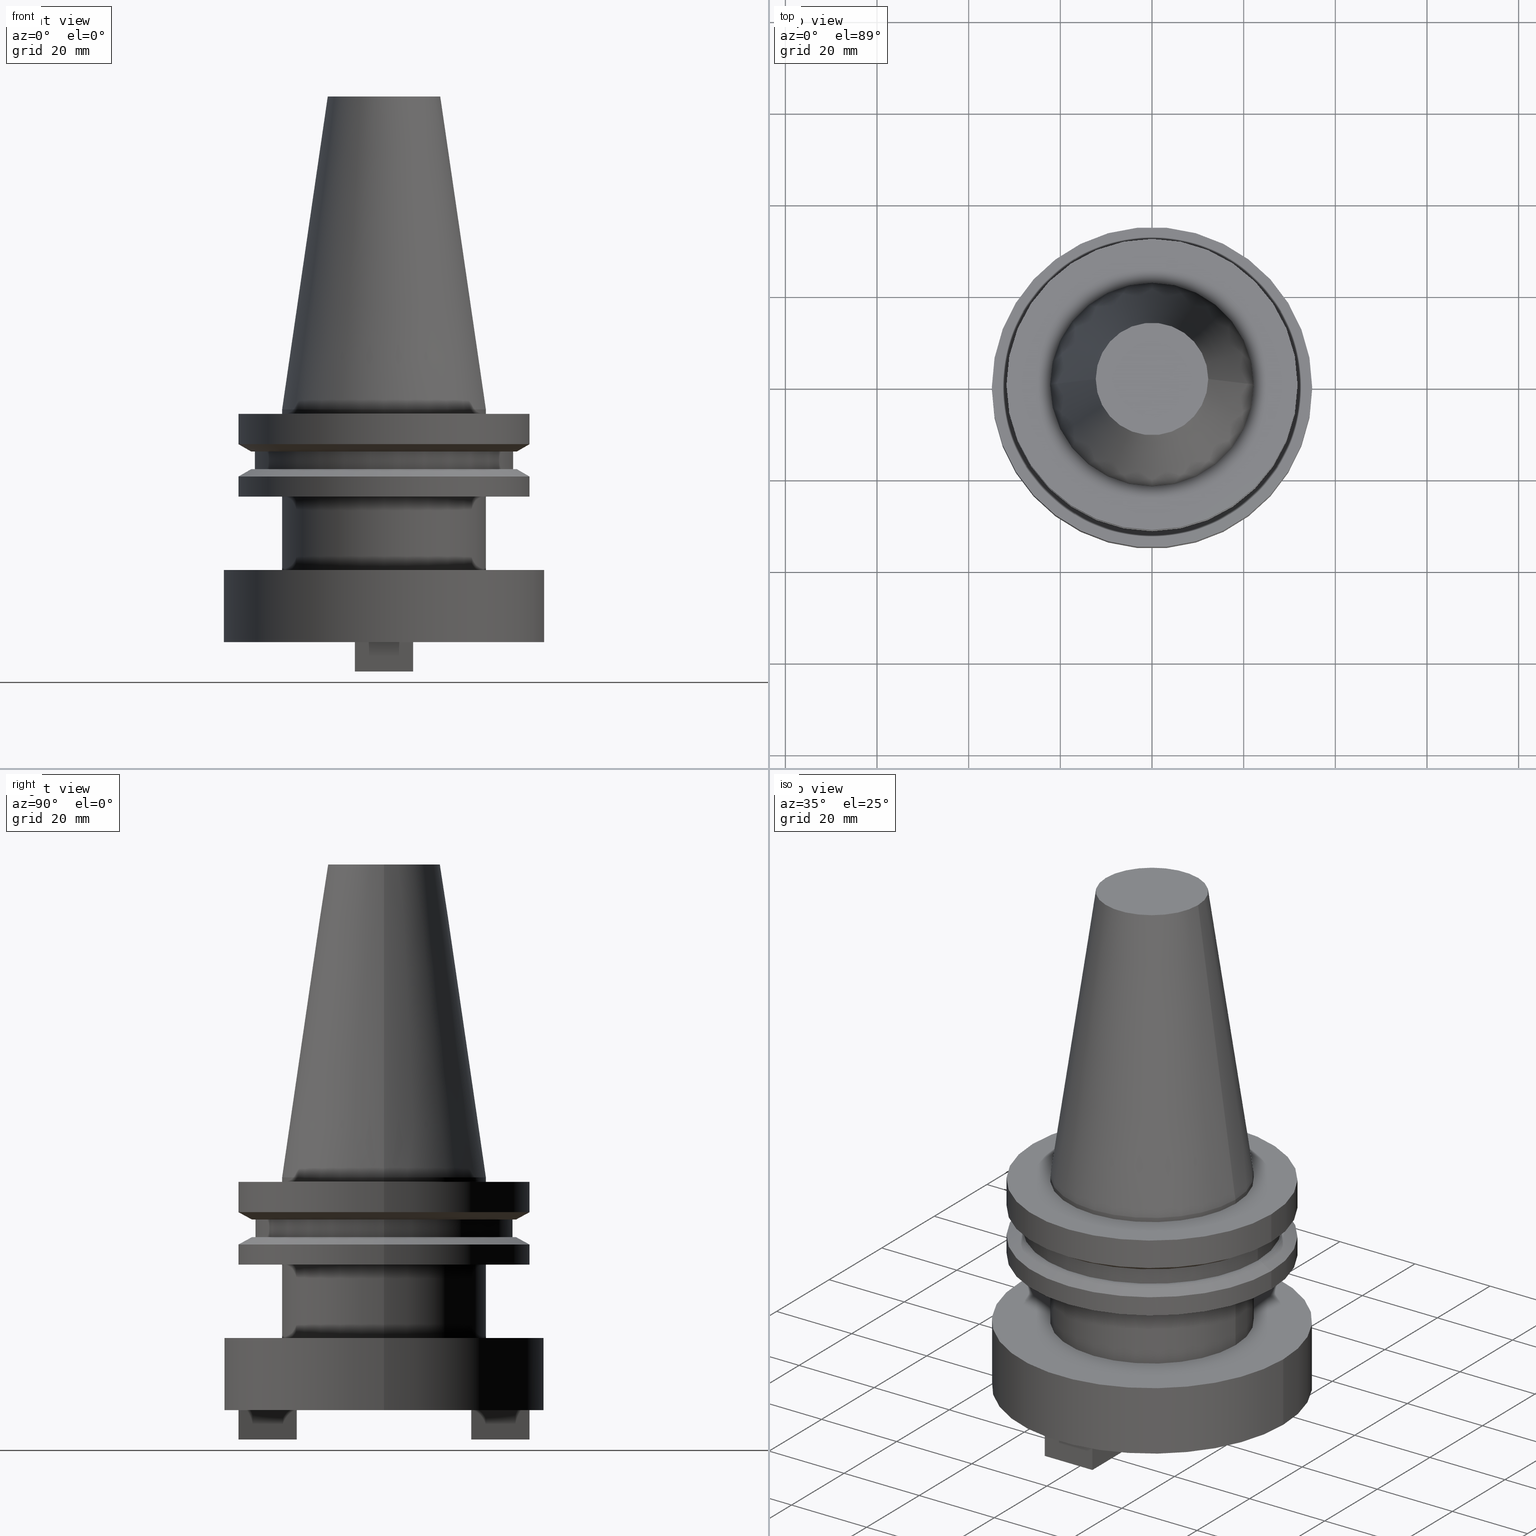
[diagram: canonical four-view strip — front | top / right | iso, engineering-drawing reading convention]
A machine part, canonical four-view strip (front | top / right | iso — engineering-drawing reading convention). The complete STEP part file that produces these views, byte-faithful:
ISO-10303-21;
HEADER;
FILE_DESCRIPTION (( 'STEP AP203' ),
    '1' );
FILE_NAME ('BCV40-SMC1_250-2.STEP',
    '2022-02-25T14:58:32',
    ( '' ),
    ( '' ),
    'SwSTEP 2.0',
    'SolidWorks 2021',
    '' );
FILE_SCHEMA (( 'CONFIG_CONTROL_DESIGN' ));
ENDSEC;

DATA;
#1 = ORIENTED_EDGE ( 'NONE', *, *, #866, .T. ) ;
#2 = CARTESIAN_POINT ( 'NONE',  ( 6.349999999999996092, 19.05000000000000071, -50.79999999999999716 ) ) ;
#3 = CARTESIAN_POINT ( 'NONE',  ( 0.000000000000000000, 0.000000000000000000, -35.04999999999999716 ) ) ;
#4 = CARTESIAN_POINT ( 'NONE',  ( 0.000000000000000000, 0.000000000000000000, 68.25000000000000000 ) ) ;
#5 = ORIENTED_EDGE ( 'NONE', *, *, #616, .F. ) ;
#6 = CONICAL_SURFACE ( 'NONE', #1042, 22.22500000000000142, 0.1448138465474119174 ) ;
#7 = ORIENTED_EDGE ( 'NONE', *, *, #664, .F. ) ;
#8 = CARTESIAN_POINT ( 'NONE',  ( 0.000000000000000000, 0.000000000000000000, 68.25000000000000000 ) ) ;
#9 = ORIENTED_EDGE ( 'NONE', *, *, #569, .F. ) ;
#10 = VECTOR ( 'NONE', #697, 1000.000000000000000 ) ;
#11 = AXIS2_PLACEMENT_3D ( 'NONE', #1024, #86, #704 ) ;
#12 = ORIENTED_EDGE ( 'NONE', *, *, #964, .F. ) ;
#13 = DIRECTION ( 'NONE',  ( 1.000000000000000000, 0.000000000000000000, 0.000000000000000000 ) ) ;
#14 = AXIS2_PLACEMENT_3D ( 'NONE', #733, #220, #973 ) ;
#15 = CONICAL_SURFACE ( 'NONE', #635, 31.75000000000000000, 1.047197551196597853 ) ;
#16 = EDGE_CURVE ( 'NONE', #118, #394, #98, .T. ) ;
#17 = LINE ( 'NONE', #776, #576 ) ;
#18 = EDGE_LOOP ( 'NONE', ( #260, #744, #755, #1089 ) ) ;
#19 = ORIENTED_EDGE ( 'NONE', *, *, #561, .F. ) ;
#20 = CARTESIAN_POINT ( 'NONE',  ( 0.000000000000000000, 0.000000000000000000, 0.000000000000000000 ) ) ;
#21 = FACE_BOUND ( 'NONE', #1040, .T. ) ;
#22 = ORIENTED_EDGE ( 'NONE', *, *, #185, .T. ) ;
#23 = ADVANCED_FACE ( 'NONE', ( #319 ), #634, .T. ) ;
#24 = AXIS2_PLACEMENT_3D ( 'NONE', #626, #346, #802 ) ;
#25 = CARTESIAN_POINT ( 'NONE',  ( 31.75000000000000000, 0.000000000000000000, -14.65472339340266572 ) ) ;
#26 = CC_DESIGN_PERSON_AND_ORGANIZATION_ASSIGNMENT ( #275, #949, ( #361 ) ) ;
#27 = DIRECTION ( 'NONE',  ( 0.000000000000000000, 0.000000000000000000, 1.000000000000000000 ) ) ;
#28 = DIRECTION ( 'NONE',  ( -0.000000000000000000, -0.000000000000000000, 1.000000000000000000 ) ) ;
#29 = ADVANCED_FACE ( 'NONE', ( #435 ), #607, .F. ) ;
#30 = ORIENTED_EDGE ( 'NONE', *, *, #778, .F. ) ;
#31 = CIRCLE ( 'NONE', #814, 22.22500000000000142 ) ;
#32 = DIRECTION ( 'NONE',  ( 1.000000000000000000, 0.000000000000000000, 0.000000000000000000 ) ) ;
#33 = VECTOR ( 'NONE', #364, 1000.000000000000000 ) ;
#34 = DATE_AND_TIME ( #955, #922 ) ;
#35 = CARTESIAN_POINT ( 'NONE',  ( 22.22500000000000142, 0.000000000000000000, 68.25000000000000000 ) ) ;
#36 = ORIENTED_EDGE ( 'NONE', *, *, #905, .T. ) ;
#37 = CARTESIAN_POINT ( 'NONE',  ( 0.000000000000000000, 0.000000000000000000, -7.605276606597335842 ) ) ;
#38 = SHAPE_DEFINITION_REPRESENTATION ( #55, #686 ) ;
#39 = CARTESIAN_POINT ( 'NONE',  ( 0.000000000000000000, 0.000000000000000000, -1.000000000000000888 ) ) ;
#40 = ORIENTED_EDGE ( 'NONE', *, *, #234, .T. ) ;
#41 = AXIS2_PLACEMENT_3D ( 'NONE', #815, #565, #139 ) ;
#42 = FACE_OUTER_BOUND ( 'NONE', #137, .T. ) ;
#43 = EDGE_LOOP ( 'NONE', ( #588, #172, #36, #712 ) ) ;
#44 = AXIS2_PLACEMENT_3D ( 'NONE', #920, #765, #421 ) ;
#45 = CARTESIAN_POINT ( 'NONE',  ( 6.349999999999996092, 31.75000000000000000, -57.20000000000000284 ) ) ;
#46 = EDGE_CURVE ( 'NONE', #741, #930, #1025, .T. ) ;
#47 = ORIENTED_EDGE ( 'NONE', *, *, #122, .F. ) ;
#48 = ORIENTED_EDGE ( 'NONE', *, *, #969, .T. ) ;
#49 = FACE_BOUND ( 'NONE', #674, .T. ) ;
#50 = DATE_AND_TIME ( #363, #596 ) ;
#51 = CARTESIAN_POINT ( 'NONE',  ( 6.349999999999996092, 31.75000000000000000, -57.20000000000000284 ) ) ;
#52 = DIRECTION ( 'NONE',  ( -0.000000000000000000, -0.000000000000000000, 1.000000000000000000 ) ) ;
#53 = ADVANCED_FACE ( 'NONE', ( #869 ), #623, .T. ) ;
#54 = CARTESIAN_POINT ( 'NONE',  ( 0.000000000000000000, 0.000000000000000000, 68.25000000000000000 ) ) ;
#55 = PRODUCT_DEFINITION_SHAPE ( 'NONE', 'NONE',  #361 ) ;
#56 = CARTESIAN_POINT ( 'NONE',  ( 6.349999999999997868, -31.75000000000000000, -57.20000000000000284 ) ) ;
#57 = PLANE ( 'NONE',  #762 ) ;
#58 = ORIENTED_EDGE ( 'NONE', *, *, #1036, .F. ) ;
#59 = EDGE_CURVE ( 'NONE', #321, #741, #1033, .T. ) ;
#60 = CARTESIAN_POINT ( 'NONE',  ( -6.350000000000003197, 31.75000000000000000, -50.79999999999999716 ) ) ;
#61 = APPLICATION_CONTEXT ( 'configuration controlled 3d designs of mechanical parts and assemblies' ) ;
#62 = CIRCLE ( 'NONE', #960, 28.17999999999999972 ) ;
#63 = PLANE ( 'NONE',  #907 ) ;
#64 = CARTESIAN_POINT ( 'NONE',  ( 0.000000000000000000, 0.000000000000000000, 0.000000000000000000 ) ) ;
#65 = ORIENTED_EDGE ( 'NONE', *, *, #46, .F. ) ;
#66 = ADVANCED_FACE ( 'NONE', ( #368, #42 ), #453, .F. ) ;
#67 = DIRECTION ( 'NONE',  ( -0.000000000000000000, -0.000000000000000000, 1.000000000000000000 ) ) ;
#68 = PRODUCT_RELATED_PRODUCT_CATEGORY ( 'detail', '', ( #392 ) ) ;
#69 = CARTESIAN_POINT ( 'NONE',  ( 0.000000000000000000, 0.000000000000000000, -35.04999999999999716 ) ) ;
#70 = ORIENTED_EDGE ( 'NONE', *, *, #396, .F. ) ;
#71 = DIRECTION ( 'NONE',  ( -0.000000000000000000, -0.000000000000000000, 1.000000000000000000 ) ) ;
#72 = ADVANCED_FACE ( 'NONE', ( #21, #859 ), #698, .F. ) ;
#73 = VECTOR ( 'NONE', #538, 999.9999999999998863 ) ;
#74 = EDGE_CURVE ( 'NONE', #1075, #830, #782, .T. ) ;
#75 = FACE_OUTER_BOUND ( 'NONE', #657, .T. ) ;
#76 = ORIENTED_EDGE ( 'NONE', *, *, #376, .T. ) ;
#77 = ORIENTED_EDGE ( 'NONE', *, *, #678, .T. ) ;
#78 = CYLINDRICAL_SURFACE ( 'NONE', #1007, 31.75000000000000000 ) ;
#79 = FACE_BOUND ( 'NONE', #702, .T. ) ;
#80 = DIRECTION ( 'NONE',  ( 0.000000000000000000, 0.000000000000000000, -1.000000000000000000 ) ) ;
#81 = EDGE_LOOP ( 'NONE', ( #1050, #12, #187, #109 ) ) ;
#82 = ORIENTED_EDGE ( 'NONE', *, *, #350, .T. ) ;
#83 = VECTOR ( 'NONE', #1043, 1000.000000000000000 ) ;
#84 = DIRECTION ( 'NONE',  ( 1.000000000000000000, 0.000000000000000000, 0.000000000000000000 ) ) ;
#85 = DIRECTION ( 'NONE',  ( 0.000000000000000000, -0.000000000000000000, 1.000000000000000000 ) ) ;
#86 = DIRECTION ( 'NONE',  ( -0.000000000000000000, -0.000000000000000000, 1.000000000000000000 ) ) ;
#87 = ADVANCED_FACE ( 'NONE', ( #1021 ), #705, .T. ) ;
#88 = EDGE_LOOP ( 'NONE', ( #40, #143, #724, #608 ) ) ;
#89 = CARTESIAN_POINT ( 'NONE',  ( 6.349999999999996092, 31.75000000000000000, -57.20000000000000284 ) ) ;
#90 = DIRECTION ( 'NONE',  ( -0.000000000000000000, -0.000000000000000000, 1.000000000000000000 ) ) ;
#91 = FACE_OUTER_BOUND ( 'NONE', #104, .T. ) ;
#92 = EDGE_LOOP ( 'NONE', ( #345, #699, #146, #19 ) ) ;
#93 = AXIS2_PLACEMENT_3D ( 'NONE', #267, #620, #1035 ) ;
#94 = ORIENTED_EDGE ( 'NONE', *, *, #213, .T. ) ;
#95 = CARTESIAN_POINT ( 'NONE',  ( 6.349999999999997868, -19.04999999999999716, -57.20000000000000284 ) ) ;
#96 = ADVANCED_FACE ( 'NONE', ( #257 ), #281, .F. ) ;
#97 = DIRECTION ( 'NONE',  ( -1.000000000000000000, 0.000000000000000000, 0.000000000000000000 ) ) ;
#98 = LINE ( 'NONE', #337, #467 ) ;
#99 = VERTEX_POINT ( 'NONE', #525 ) ;
#100 = DIRECTION ( 'NONE',  ( 0.000000000000000000, -0.000000000000000000, 1.000000000000000000 ) ) ;
#101 = AXIS2_PLACEMENT_3D ( 'NONE', #801, #372, #901 ) ;
#102 = EDGE_CURVE ( 'NONE', #1010, #1064, #629, .T. ) ;
#103 = DIRECTION ( 'NONE',  ( 0.000000000000000000, 0.000000000000000000, -1.000000000000000000 ) ) ;
#104 = EDGE_LOOP ( 'NONE', ( #793, #946, #637, #819 ) ) ;
#105 = CARTESIAN_POINT ( 'NONE',  ( 6.349999999999996092, 19.05000000000000071, -57.20000000000000284 ) ) ;
#106 = EDGE_CURVE ( 'NONE', #798, #537, #536, .T. ) ;
#107 = CARTESIAN_POINT ( 'NONE',  ( 6.349999999999997868, -19.04999999999999716, -50.79999999999999716 ) ) ;
#108 = EDGE_CURVE ( 'NONE', #174, #273, #980, .T. ) ;
#109 = ORIENTED_EDGE ( 'NONE', *, *, #578, .T. ) ;
#110 = DIRECTION ( 'NONE',  ( -1.000000000000000000, 0.000000000000000000, 0.000000000000000000 ) ) ;
#111 = CARTESIAN_POINT ( 'NONE',  ( -28.97919780457008088, 0.000000000000000000, -13.05499999999999794 ) ) ;
#112 = ORIENTED_EDGE ( 'NONE', *, *, #545, .F. ) ;
#113 = CIRCLE ( 'NONE', #884, 28.17999999999999972 ) ;
#114 = DIRECTION ( 'NONE',  ( -0.000000000000000000, -0.000000000000000000, 1.000000000000000000 ) ) ;
#115 = AXIS2_PLACEMENT_3D ( 'NONE', #651, #896, #141 ) ;
#116 = APPROVAL_DATE_TIME ( #868, #625 ) ;
#117 = DIRECTION ( 'NONE',  ( 1.000000000000000000, 0.000000000000000000, 0.000000000000000000 ) ) ;
#118 = VERTEX_POINT ( 'NONE', #873 ) ;
#119 = DIRECTION ( 'NONE',  ( 1.000000000000000000, 0.000000000000000000, 0.000000000000000000 ) ) ;
#120 = ORIENTED_EDGE ( 'NONE', *, *, #997, .T. ) ;
#121 = CIRCLE ( 'NONE', #1022, 28.97919780457007732 ) ;
#122 = EDGE_CURVE ( 'NONE', #824, #118, #1014, .T. ) ;
#123 = APPROVAL_ROLE ( '' ) ;
#124 = DIRECTION ( 'NONE',  ( -0.000000000000000000, -0.000000000000000000, 1.000000000000000000 ) ) ;
#125 = ORIENTED_EDGE ( 'NONE', *, *, #821, .T. ) ;
#126 = ORIENTED_EDGE ( 'NONE', *, *, #74, .T. ) ;
#127 = LINE ( 'NONE', #742, #680 ) ;
#128 = APPROVAL_STATUS ( 'not_yet_approved' ) ;
#129 = FACE_OUTER_BOUND ( 'NONE', #675, .T. ) ;
#130 = EDGE_CURVE ( 'NONE', #642, #440, #540, .T. ) ;
#131 = DIRECTION ( 'NONE',  ( 1.000000000000000000, 0.000000000000000000, 0.000000000000000000 ) ) ;
#132 = VERTEX_POINT ( 'NONE', #111 ) ;
#133 = CARTESIAN_POINT ( 'NONE',  ( 22.22500000000000142, 0.000000000000000000, -1.000000000000000888 ) ) ;
#134 = CARTESIAN_POINT ( 'NONE',  ( 6.349999999999997868, -19.04999999999999716, -57.20000000000000284 ) ) ;
#135 = EDGE_CURVE ( 'NONE', #440, #1001, #787, .T. ) ;
#136 = DIRECTION ( 'NONE',  ( -0.000000000000000000, -0.000000000000000000, 1.000000000000000000 ) ) ;
#137 = EDGE_LOOP ( 'NONE', ( #278, #356 ) ) ;
#138 = ADVANCED_FACE ( 'NONE', ( #956 ), #450, .T. ) ;
#139 = DIRECTION ( 'NONE',  ( -1.000000000000000000, 0.000000000000000000, 0.000000000000000000 ) ) ;
#140 = AXIS2_PLACEMENT_3D ( 'NONE', #352, #701, #959 ) ;
#141 = DIRECTION ( 'NONE',  ( 1.000000000000000000, 0.000000000000000000, 0.000000000000000000 ) ) ;
#142 = DIRECTION ( 'NONE',  ( -0.000000000000000000, 0.000000000000000000, -1.000000000000000000 ) ) ;
#143 = ORIENTED_EDGE ( 'NONE', *, *, #990, .T. ) ;
#144 = CARTESIAN_POINT ( 'NONE',  ( -7.339999999999997193, 8.988907505741567921E-16, -35.04999999999999716 ) ) ;
#145 = FACE_OUTER_BOUND ( 'NONE', #1006, .T. ) ;
#146 = ORIENTED_EDGE ( 'NONE', *, *, #771, .F. ) ;
#147 = VECTOR ( 'NONE', #854, 1000.000000000000000 ) ;
#148 = CIRCLE ( 'NONE', #917, 22.22500000000000142 ) ;
#149 = CARTESIAN_POINT ( 'NONE',  ( -34.95000000000000284, 4.280140563019999423E-15, -50.79999999999999716 ) ) ;
#150 = DIRECTION ( 'NONE',  ( 1.000000000000000000, 0.000000000000000000, 0.000000000000000000 ) ) ;
#151 = DIRECTION ( 'NONE',  ( 1.000000000000000000, 0.000000000000000000, 0.000000000000000000 ) ) ;
#152 = EDGE_LOOP ( 'NONE', ( #662, #860, #58, #509 ) ) ;
#153 = CARTESIAN_POINT ( 'NONE',  ( 6.349999999999997868, -19.04999999999999716, -57.20000000000000284 ) ) ;
#154 = DIRECTION ( 'NONE',  ( 1.000000000000000000, 0.000000000000000000, 0.000000000000000000 ) ) ;
#155 = CARTESIAN_POINT ( 'NONE',  ( -6.350000000000003197, -19.04999999999999716, -57.20000000000000284 ) ) ;
#156 = ORIENTED_EDGE ( 'NONE', *, *, #259, .T. ) ;
#157 = ORIENTED_EDGE ( 'NONE', *, *, #837, .T. ) ;
#158 = CARTESIAN_POINT ( 'NONE',  ( 0.000000000000000000, 0.000000000000000000, -19.04999999999999716 ) ) ;
#159 = CARTESIAN_POINT ( 'NONE',  ( 0.000000000000000000, 0.000000000000000000, -19.04999999999999716 ) ) ;
#160 = EDGE_CURVE ( 'NONE', #614, #99, #641, .T. ) ;
#161 = VECTOR ( 'NONE', #747, 1000.000000000000000 ) ;
#162 =( NAMED_UNIT ( * ) PLANE_ANGLE_UNIT ( ) SI_UNIT ( $, .RADIAN. ) );
#163 = ORIENTED_EDGE ( 'NONE', *, *, #957, .F. ) ;
#164 = APPROVAL ( #786, 'UNSPECIFIED' ) ;
#165 = VERTEX_POINT ( 'NONE', #144 ) ;
#166 = DIRECTION ( 'NONE',  ( 1.000000000000000000, -0.000000000000000000, -0.000000000000000000 ) ) ;
#167 = CIRCLE ( 'NONE', #1066, 22.22500000000000142 ) ;
#168 = DIRECTION ( 'NONE',  ( -1.000000000000000000, 0.000000000000000000, -0.000000000000000000 ) ) ;
#169 = CARTESIAN_POINT ( 'NONE',  ( 22.22500000000000142, 2.721777511104992849E-15, 0.000000000000000000 ) ) ;
#170 = ORIENTED_EDGE ( 'NONE', *, *, #969, .F. ) ;
#171 = EDGE_CURVE ( 'NONE', #273, #165, #573, .T. ) ;
#172 = ORIENTED_EDGE ( 'NONE', *, *, #247, .T. ) ;
#173 = FACE_OUTER_BOUND ( 'NONE', #599, .T. ) ;
#174 = VERTEX_POINT ( 'NONE', #462 ) ;
#175 = VECTOR ( 'NONE', #315, 1000.000000000000000 ) ;
#176 = VERTEX_POINT ( 'NONE', #489 ) ;
#177 = CARTESIAN_POINT ( 'NONE',  ( 0.000000000000000000, 0.000000000000000000, 0.000000000000000000 ) ) ;
#178 = ADVANCED_FACE ( 'NONE', ( #288 ), #816, .T. ) ;
#179 = DIRECTION ( 'NONE',  ( -0.000000000000000000, -0.000000000000000000, 1.000000000000000000 ) ) ;
#180 = DIRECTION ( 'NONE',  ( 0.000000000000000000, 0.000000000000000000, -1.000000000000000000 ) ) ;
#181 = EDGE_LOOP ( 'NONE', ( #120, #309, #226, #373 ) ) ;
#182 = CARTESIAN_POINT ( 'NONE',  ( 0.000000000000000000, 0.000000000000000000, -13.05499999999999794 ) ) ;
#183 = ADVANCED_FACE ( 'NONE', ( #129 ), #977, .F. ) ;
#184 = AXIS2_PLACEMENT_3D ( 'NONE', #753, #85, #511 ) ;
#185 = EDGE_CURVE ( 'NONE', #404, #706, #199, .T. ) ;
#186 = DIRECTION ( 'NONE',  ( 0.000000000000000000, 0.000000000000000000, -1.000000000000000000 ) ) ;
#187 = ORIENTED_EDGE ( 'NONE', *, *, #459, .F. ) ;
#188 = DIRECTION ( 'NONE',  ( -0.8660254037844387076, 0.000000000000000000, -0.4999999999999998890 ) ) ;
#189 = APPROVAL_STATUS ( 'not_yet_approved' ) ;
#190 = CARTESIAN_POINT ( 'NONE',  ( 0.000000000000000000, 0.000000000000000000, -50.79999999999999716 ) ) ;
#191 = VECTOR ( 'NONE', #893, 1000.000000000000000 ) ;
#192 = VERTEX_POINT ( 'NONE', #817 ) ;
#193 = CYLINDRICAL_SURFACE ( 'NONE', #499, 31.75000000000000000 ) ;
#194 = PERSON_AND_ORGANIZATION ( #534, #1061 ) ;
#195 = DIRECTION ( 'NONE',  ( 0.000000000000000000, -1.000000000000000000, -0.000000000000000000 ) ) ;
#196 = ORIENTED_EDGE ( 'NONE', *, *, #323, .T. ) ;
#197 = AXIS2_PLACEMENT_3D ( 'NONE', #4, #781, #1020 ) ;
#198 = LINE ( 'NONE', #261, #457 ) ;
#199 = CIRCLE ( 'NONE', #431, 28.97919780457007732 ) ;
#200 = DIRECTION ( 'NONE',  ( -1.000000000000000000, 0.000000000000000000, 0.000000000000000000 ) ) ;
#201 = VERTEX_POINT ( 'NONE', #474 ) ;
#202 = EDGE_CURVE ( 'NONE', #761, #165, #580, .T. ) ;
#203 = ORIENTED_EDGE ( 'NONE', *, *, #102, .T. ) ;
#204 = PERSON_AND_ORGANIZATION ( #534, #1061 ) ;
#205 = DIRECTION ( 'NONE',  ( -1.000000000000000000, 0.000000000000000000, 0.000000000000000000 ) ) ;
#206 = ORIENTED_EDGE ( 'NONE', *, *, #344, .T. ) ;
#207 = CIRCLE ( 'NONE', #93, 12.27178102086201150 ) ;
#208 = CARTESIAN_POINT ( 'NONE',  ( 6.349999999999996092, 31.75000000000000000, -57.20000000000000284 ) ) ;
#209 = LINE ( 'NONE', #56, #707 ) ;
#210 = ORIENTED_EDGE ( 'NONE', *, *, #883, .F. ) ;
#211 = CARTESIAN_POINT ( 'NONE',  ( -28.97919780457007732, 3.718590885307660666E-15, -9.205000000000005400 ) ) ;
#212 = EDGE_CURVE ( 'NONE', #118, #824, #722, .T. ) ;
#213 = EDGE_CURVE ( 'NONE', #99, #741, #209, .T. ) ;
#214 = DIRECTION ( 'NONE',  ( -0.000000000000000000, -0.000000000000000000, 1.000000000000000000 ) ) ;
#215 = VECTOR ( 'NONE', #439, 1000.000000000000000 ) ;
#216 = CARTESIAN_POINT ( 'NONE',  ( -28.17999999999999972, 3.451054679997241634E-15, -9.204999999999991189 ) ) ;
#217 = AXIS2_PLACEMENT_3D ( 'NONE', #54, #1051, #493 ) ;
#218 = EDGE_LOOP ( 'NONE', ( #5, #879, #125, #447 ) ) ;
#219 = DIRECTION ( 'NONE',  ( -0.000000000000000000, -0.000000000000000000, 1.000000000000000000 ) ) ;
#220 = DIRECTION ( 'NONE',  ( -0.000000000000000000, -0.000000000000000000, 1.000000000000000000 ) ) ;
#221 = DIRECTION ( 'NONE',  ( -0.000000000000000000, 0.000000000000000000, -1.000000000000000000 ) ) ;
#222 = EDGE_LOOP ( 'NONE', ( #550, #632, #1, #30 ) ) ;
#223 = PLANE ( 'NONE',  #897 ) ;
#224 = CYLINDRICAL_SURFACE ( 'NONE', #944, 28.17999999999999972 ) ;
#225 = CARTESIAN_POINT ( 'NONE',  ( 31.75000000000000000, 3.888253587292846476E-15, -14.65472339340266572 ) ) ;
#226 = ORIENTED_EDGE ( 'NONE', *, *, #749, .F. ) ;
#227 = EDGE_CURVE ( 'NONE', #779, #291, #667, .T. ) ;
#228 = CYLINDRICAL_SURFACE ( 'NONE', #217, 22.22500000000000142 ) ;
#229 = AXIS2_PLACEMENT_3D ( 'NONE', #818, #914, #909 ) ;
#230 = PLANE ( 'NONE',  #539 ) ;
#231 = CARTESIAN_POINT ( 'NONE',  ( 0.000000000000000000, 0.000000000000000000, -57.20000000000000284 ) ) ;
#232 = EDGE_LOOP ( 'NONE', ( #76, #48 ) ) ;
#233 = AXIS2_PLACEMENT_3D ( 'NONE', #555, #739, #386 ) ;
#234 = EDGE_CURVE ( 'NONE', #798, #513, #285, .T. ) ;
#235 = LINE ( 'NONE', #255, #311 ) ;
#236 = DIRECTION ( 'NONE',  ( -0.000000000000000000, -0.000000000000000000, 1.000000000000000000 ) ) ;
#237 = LINE ( 'NONE', #586, #10 ) ;
#238 = ORIENTED_EDGE ( 'NONE', *, *, #1083, .F. ) ;
#239 = CYLINDRICAL_SURFACE ( 'NONE', #331, 7.339999999999997193 ) ;
#240 = CC_DESIGN_PERSON_AND_ORGANIZATION_ASSIGNMENT ( #622, #380, ( #392 ) ) ;
#241 = DIRECTION ( 'NONE',  ( 1.000000000000000000, 0.000000000000000000, 0.000000000000000000 ) ) ;
#242 = DIRECTION ( 'NONE',  ( 1.000000000000000000, 0.000000000000000000, 0.000000000000000000 ) ) ;
#243 = ORIENTED_EDGE ( 'NONE', *, *, #396, .T. ) ;
#244 = ORIENTED_EDGE ( 'NONE', *, *, #461, .F. ) ;
#245 = CARTESIAN_POINT ( 'NONE',  ( 31.75000000000000000, 0.000000000000000000, -1.000000000000000888 ) ) ;
#246 = LINE ( 'NONE', #918, #412 ) ;
#247 = EDGE_CURVE ( 'NONE', #1034, #334, #1013, .T. ) ;
#248 = DIRECTION ( 'NONE',  ( -0.000000000000000000, 1.000000000000000000, -0.000000000000000000 ) ) ;
#249 = VERTEX_POINT ( 'NONE', #45 ) ;
#250 = ORIENTED_EDGE ( 'NONE', *, *, #552, .F. ) ;
#251 = DIRECTION ( 'NONE',  ( 0.8660254037844389297, 0.000000000000000000, 0.4999999999999995004 ) ) ;
#252 = CIRCLE ( 'NONE', #1015, 34.95000000000000995 ) ;
#253 = ORIENTED_EDGE ( 'NONE', *, *, #212, .F. ) ;
#254 = VERTEX_POINT ( 'NONE', #375 ) ;
#255 = CARTESIAN_POINT ( 'NONE',  ( -31.75000000000000000, 3.888253587292846476E-15, 68.25000000000000000 ) ) ;
#256 = DIRECTION ( 'NONE',  ( -0.000000000000000000, 1.000000000000000000, -0.000000000000000000 ) ) ;
#257 = FACE_OUTER_BOUND ( 'NONE', #716, .T. ) ;
#258 = CIRCLE ( 'NONE', #877, 28.97919780457008088 ) ;
#259 = EDGE_CURVE ( 'NONE', #1044, #1001, #597, .T. ) ;
#260 = ORIENTED_EDGE ( 'NONE', *, *, #804, .F. ) ;
#261 = CARTESIAN_POINT ( 'NONE',  ( 22.22500000000000142, 0.000000000000000000, 68.25000000000000000 ) ) ;
#262 = ADVANCED_FACE ( 'NONE', ( #1062 ), #302, .T. ) ;
#263 = LINE ( 'NONE', #516, #316 ) ;
#264 = DIRECTION ( 'NONE',  ( -1.000000000000000000, 0.000000000000000000, -0.000000000000000000 ) ) ;
#265 = AXIS2_PLACEMENT_3D ( 'NONE', #438, #27, #353 ) ;
#266 = ORIENTED_EDGE ( 'NONE', *, *, #185, .F. ) ;
#267 = CARTESIAN_POINT ( 'NONE',  ( 0.000000000000000000, 0.000000000000000000, 68.25000000000000000 ) ) ;
#268 = AXIS2_PLACEMENT_3D ( 'NONE', #190, #28, #543 ) ;
#269 = CIRCLE ( 'NONE', #889, 31.74999999999999289 ) ;
#270 = AXIS2_PLACEMENT_3D ( 'NONE', #711, #180, #613 ) ;
#271 = CYLINDRICAL_SURFACE ( 'NONE', #197, 22.22500000000000142 ) ;
#272 = CARTESIAN_POINT ( 'NONE',  ( 0.000000000000000000, 7.339999999999995417, -35.04999999999999716 ) ) ;
#273 = VERTEX_POINT ( 'NONE', #483 ) ;
#274 = DIRECTION ( 'NONE',  ( -0.000000000000000000, -0.000000000000000000, 1.000000000000000000 ) ) ;
#275 = PERSON_AND_ORGANIZATION ( #534, #1061 ) ;
#276 = CARTESIAN_POINT ( 'NONE',  ( 6.349999999999997868, -31.75000000000000000, -50.79999999999999716 ) ) ;
#277 = VECTOR ( 'NONE', #52, 1000.000000000000000 ) ;
#278 = ORIENTED_EDGE ( 'NONE', *, *, #406, .T. ) ;
#279 = FACE_OUTER_BOUND ( 'NONE', #789, .T. ) ;
#280 = MANIFOLD_SOLID_BREP ( 'SQ', #320 ) ;
#281 = PLANE ( 'NONE',  #788 ) ;
#282 = ADVANCED_FACE ( 'NONE', ( #811 ), #63, .F. ) ;
#283 = ORIENTED_EDGE ( 'NONE', *, *, #804, .T. ) ;
#284 = APPROVAL_PERSON_ORGANIZATION ( #468, #164, #628 ) ;
#285 = CIRCLE ( 'NONE', #391, 34.95000000000000284 ) ;
#286 = AXIS2_PLACEMENT_3D ( 'NONE', #51, #547, #560 ) ;
#287 = PERSON_AND_ORGANIZATION_ROLE ( 'design_supplier' ) ;
#288 = FACE_OUTER_BOUND ( 'NONE', #92, .T. ) ;
#289 = VERTEX_POINT ( 'NONE', #986 ) ;
#290 = ADVANCED_FACE ( 'NONE', ( #719 ), #224, .T. ) ;
#291 = VERTEX_POINT ( 'NONE', #585 ) ;
#292 = FACE_BOUND ( 'NONE', #721, .T. ) ;
#293 = CARTESIAN_POINT ( 'NONE',  ( 0.000000000000000000, 0.000000000000000000, -50.79999999999999716 ) ) ;
#294 = EDGE_LOOP ( 'NONE', ( #968, #803, #306, #929 ) ) ;
#295 = ADVANCED_FACE ( 'NONE', ( #992 ), #230, .F. ) ;
#296 = DIRECTION ( 'NONE',  ( -0.000000000000000000, -0.000000000000000000, 1.000000000000000000 ) ) ;
#297 = CARTESIAN_POINT ( 'NONE',  ( -7.339999999999997193, 8.988907505741567921E-16, 0.000000000000000000 ) ) ;
#298 = DIRECTION ( 'NONE',  ( -0.000000000000000000, -0.000000000000000000, 1.000000000000000000 ) ) ;
#299 = VERTEX_POINT ( 'NONE', #1004 ) ;
#300 = CC_DESIGN_APPROVAL ( #951, ( #976 ) ) ;
#301 = FACE_OUTER_BOUND ( 'NONE', #979, .T. ) ;
#302 = CYLINDRICAL_SURFACE ( 'NONE', #115, 28.17999999999999972 ) ;
#303 = AXIS2_PLACEMENT_3D ( 'NONE', #715, #195, #103 ) ;
#304 = CARTESIAN_POINT ( 'NONE',  ( -6.350000000000003197, -31.75000000000000000, -50.79999999999999716 ) ) ;
#305 = CIRCLE ( 'NONE', #927, 12.27178102086201150 ) ;
#306 = ORIENTED_EDGE ( 'NONE', *, *, #160, .F. ) ;
#307 = CARTESIAN_POINT ( 'NONE',  ( 0.000000000000000000, 0.000000000000000000, -13.05499999999999794 ) ) ;
#308 = PLANE ( 'NONE',  #1027 ) ;
#309 = ORIENTED_EDGE ( 'NONE', *, *, #1016, .F. ) ;
#310 = LINE ( 'NONE', #810, #676 ) ;
#311 = VECTOR ( 'NONE', #684, 1000.000000000000000 ) ;
#312 = DIRECTION ( 'NONE',  ( -0.000000000000000000, -0.000000000000000000, 1.000000000000000000 ) ) ;
#313 = FACE_OUTER_BOUND ( 'NONE', #81, .T. ) ;
#314 = ORIENTED_EDGE ( 'NONE', *, *, #997, .F. ) ;
#315 = DIRECTION ( 'NONE',  ( -0.000000000000000000, -0.000000000000000000, 1.000000000000000000 ) ) ;
#316 = VECTOR ( 'NONE', #97, 1000.000000000000000 ) ;
#317 = PLANE ( 'NONE',  #184 ) ;
#318 = DIRECTION ( 'NONE',  ( 1.000000000000000000, 0.000000000000000000, 0.000000000000000000 ) ) ;
#319 = FACE_OUTER_BOUND ( 'NONE', #766, .T. ) ;
#320 = CLOSED_SHELL ( 'NONE', ( #519, #775, #1049, #87, #178, #290, #425, #610, #441, #694, #413, #138, #295, #53, #341, #328, #487, #72, #262, #967, #23, #720, #919, #1029, #66, #872, #630, #501, #96, #183, #764, #282, #934, #851, #29, #638, #531, #942 ) ) ;
#321 = VERTEX_POINT ( 'NONE', #913 ) ;
#322 = DIRECTION ( 'NONE',  ( -0.000000000000000000, -0.000000000000000000, 1.000000000000000000 ) ) ;
#323 = EDGE_CURVE ( 'NONE', #1054, #517, #633, .T. ) ;
#324 = DIRECTION ( 'NONE',  ( 1.000000000000000000, 0.000000000000000000, 0.000000000000000000 ) ) ;
#325 = FACE_OUTER_BOUND ( 'NONE', #808, .T. ) ;
#326 = ORIENTED_EDGE ( 'NONE', *, *, #122, .T. ) ;
#327 = EDGE_LOOP ( 'NONE', ( #865, #563 ) ) ;
#328 = ADVANCED_FACE ( 'NONE', ( #672 ), #833, .T. ) ;
#329 = DIRECTION ( 'NONE',  ( 1.000000000000000000, 0.000000000000000000, 0.000000000000000000 ) ) ;
#330 = EDGE_CURVE ( 'NONE', #273, #174, #430, .T. ) ;
#331 = AXIS2_PLACEMENT_3D ( 'NONE', #752, #845, #911 ) ;
#332 = DIRECTION ( 'NONE',  ( 0.000000000000000000, 0.000000000000000000, -1.000000000000000000 ) ) ;
#333 = CARTESIAN_POINT ( 'NONE',  ( 0.000000000000000000, 0.000000000000000000, 68.25000000000000000 ) ) ;
#334 = VERTEX_POINT ( 'NONE', #420 ) ;
#335 = CARTESIAN_POINT ( 'NONE',  ( 6.349999999999996092, 31.75000000000000000, -57.20000000000000284 ) ) ;
#336 = VECTOR ( 'NONE', #136, 1000.000000000000000 ) ;
#337 = CARTESIAN_POINT ( 'NONE',  ( 28.17999999999999972, 0.000000000000000000, 68.25000000000000000 ) ) ;
#338 = ORIENTED_EDGE ( 'NONE', *, *, #650, .F. ) ;
#339 = AXIS2_PLACEMENT_3D ( 'NONE', #723, #797, #892 ) ;
#340 = DIRECTION ( 'NONE',  ( -0.000000000000000000, 0.000000000000000000, 1.000000000000000000 ) ) ;
#341 = ADVANCED_FACE ( 'NONE', ( #590, #79 ), #317, .F. ) ;
#342 = CARTESIAN_POINT ( 'NONE',  ( -6.350000000000003197, 31.75000000000000000, -50.79999999999999716 ) ) ;
#343 = ORIENTED_EDGE ( 'NONE', *, *, #106, .T. ) ;
#344 = EDGE_CURVE ( 'NONE', #192, #779, #246, .T. ) ;
#345 = ORIENTED_EDGE ( 'NONE', *, *, #794, .T. ) ;
#346 = DIRECTION ( 'NONE',  ( -1.000000000000000000, 0.000000000000000000, -0.000000000000000000 ) ) ;
#347 = UNCERTAINTY_MEASURE_WITH_UNIT (LENGTH_MEASURE( 1.000000000000000082E-05 ), #841, 'distance_accuracy_value', 'NONE');
#348 = DIRECTION ( 'NONE',  ( -0.000000000000000000, -0.000000000000000000, 1.000000000000000000 ) ) ;
#349 = VECTOR ( 'NONE', #1019, 1000.000000000000000 ) ;
#350 = EDGE_CURVE ( 'NONE', #299, #370, #269, .T. ) ;
#351 = ORIENTED_EDGE ( 'NONE', *, *, #378, .F. ) ;
#352 = CARTESIAN_POINT ( 'NONE',  ( 0.000000000000000000, 0.000000000000000000, -14.65472339340266572 ) ) ;
#353 = DIRECTION ( 'NONE',  ( 1.000000000000000000, 0.000000000000000000, 0.000000000000000000 ) ) ;
#354 = DIRECTION ( 'NONE',  ( -0.000000000000000000, -0.000000000000000000, 1.000000000000000000 ) ) ;
#355 = LOCAL_TIME ( 8, 58, 32.00000000000000000, #972 ) ;
#356 = ORIENTED_EDGE ( 'NONE', *, *, #650, .T. ) ;
#357 = EDGE_CURVE ( 'NONE', #642, #1044, #660, .T. ) ;
#358 = CARTESIAN_POINT ( 'NONE',  ( 0.000000000000000000, 0.000000000000000000, -9.205000000000005400 ) ) ;
#359 = EDGE_LOOP ( 'NONE', ( #594, #958, #989, #126 ) ) ;
#360 = VECTOR ( 'NONE', #200, 1000.000000000000000 ) ;
#361 = PRODUCT_DEFINITION ( 'UNKNOWN', '', #976, #690 ) ;
#362 = CC_DESIGN_DATE_AND_TIME_ASSIGNMENT ( #34, #885, ( #1045 ) ) ;
#363 = CALENDAR_DATE ( 2022, 25, 2 ) ;
#364 = DIRECTION ( 'NONE',  ( -0.000000000000000000, -0.000000000000000000, 1.000000000000000000 ) ) ;
#365 = ORIENTED_EDGE ( 'NONE', *, *, #552, .T. ) ;
#366 = DIRECTION ( 'NONE',  ( 1.000000000000000000, 0.000000000000000000, 0.000000000000000000 ) ) ;
#367 = EDGE_CURVE ( 'NONE', #1064, #201, #416, .T. ) ;
#368 = FACE_BOUND ( 'NONE', #232, .T. ) ;
#369 = AXIS2_PLACEMENT_3D ( 'NONE', #158, #595, #601 ) ;
#370 = VERTEX_POINT ( 'NONE', #759 ) ;
#371 = COORDINATED_UNIVERSAL_TIME_OFFSET ( 6, 0, .BEHIND. ) ;
#372 = DIRECTION ( 'NONE',  ( -0.000000000000000000, -0.000000000000000000, 1.000000000000000000 ) ) ;
#373 = ORIENTED_EDGE ( 'NONE', *, *, #964, .T. ) ;
#374 = AXIS2_PLACEMENT_3D ( 'NONE', #828, #1087, #150 ) ;
#375 = CARTESIAN_POINT ( 'NONE',  ( -6.350000000000003197, -19.04999999999999716, -50.79999999999999716 ) ) ;
#376 = EDGE_CURVE ( 'NONE', #176, #192, #167, .T. ) ;
#377 = ORIENTED_EDGE ( 'NONE', *, *, #227, .F. ) ;
#378 = EDGE_CURVE ( 'NONE', #894, #796, #305, .T. ) ;
#379 = DIRECTION ( 'NONE',  ( 0.000000000000000000, -0.000000000000000000, 1.000000000000000000 ) ) ;
#380 = PERSON_AND_ORGANIZATION_ROLE ( 'design_owner' ) ;
#381 = DIRECTION ( 'NONE',  ( 1.000000000000000000, 0.000000000000000000, 0.000000000000000000 ) ) ;
#382 = CARTESIAN_POINT ( 'NONE',  ( -28.17999999999999972, 3.451054679997241634E-15, -13.05499999999999794 ) ) ;
#383 = ORIENTED_EDGE ( 'NONE', *, *, #102, .F. ) ;
#384 = AXIS2_PLACEMENT_3D ( 'NONE', #153, #498, #340 ) ;
#385 = DIRECTION ( 'NONE',  ( -0.000000000000000000, -0.000000000000000000, 1.000000000000000000 ) ) ;
#386 = DIRECTION ( 'NONE',  ( 1.000000000000000000, 0.000000000000000000, 0.000000000000000000 ) ) ;
#387 = CYLINDRICAL_SURFACE ( 'NONE', #768, 34.95000000000000995 ) ;
#388 = ORIENTED_EDGE ( 'NONE', *, *, #578, .F. ) ;
#389 = DIRECTION ( 'NONE',  ( -0.000000000000000000, -0.000000000000000000, 1.000000000000000000 ) ) ;
#390 = DIRECTION ( 'NONE',  ( 0.000000000000000000, 1.000000000000000000, 0.000000000000000000 ) ) ;
#391 = AXIS2_PLACEMENT_3D ( 'NONE', #293, #214, #886 ) ;
#392 = PRODUCT ( 'BCV40-SMC1_250-2', 'BCV40-SMC1_250-2', '', ( #932 ) ) ;
#393 = DIRECTION ( 'NONE',  ( 0.000000000000000000, 0.000000000000000000, -1.000000000000000000 ) ) ;
#394 = VERTEX_POINT ( 'NONE', #500 ) ;
#395 = CARTESIAN_POINT ( 'NONE',  ( 0.000000000000000000, 34.95000000000000284, -50.79999999999999716 ) ) ;
#396 = EDGE_CURVE ( 'NONE', #249, #201, #1067, .T. ) ;
#397 = CARTESIAN_POINT ( 'NONE',  ( 6.349999999999996092, 31.75000000000000000, -50.79999999999999716 ) ) ;
#398 = DIRECTION ( 'NONE',  ( -0.000000000000000000, -0.000000000000000000, 1.000000000000000000 ) ) ;
#399 = ORIENTED_EDGE ( 'NONE', *, *, #1068, .F. ) ;
#400 = FACE_OUTER_BOUND ( 'NONE', #709, .T. ) ;
#401 = VECTOR ( 'NONE', #251, 1000.000000000000000 ) ;
#402 = DIRECTION ( 'NONE',  ( 1.000000000000000000, -0.000000000000000000, -0.000000000000000000 ) ) ;
#403 = DIRECTION ( 'NONE',  ( 0.000000000000000000, 0.000000000000000000, -1.000000000000000000 ) ) ;
#404 = VERTEX_POINT ( 'NONE', #211 ) ;
#405 = VECTOR ( 'NONE', #1060, 1000.000000000000000 ) ;
#406 = EDGE_CURVE ( 'NONE', #537, #471, #252, .T. ) ;
#407 = EDGE_LOOP ( 'NONE', ( #619, #351, #1011, #156 ) ) ;
#408 = LINE ( 'NONE', #671, #954 ) ;
#409 = AXIS2_PLACEMENT_3D ( 'NONE', #983, #221, #567 ) ;
#410 = CARTESIAN_POINT ( 'NONE',  ( 0.000000000000000000, 31.75000000000000000, -0.9999999999999995559 ) ) ;
#411 = EDGE_LOOP ( 'NONE', ( #497, #939 ) ) ;
#412 = VECTOR ( 'NONE', #312, 1000.000000000000000 ) ;
#413 = ADVANCED_FACE ( 'NONE', ( #49, #981, #799, #292 ), #571, .F. ) ;
#414 = ORIENTED_EDGE ( 'NONE', *, *, #1037, .T. ) ;
#415 = CARTESIAN_POINT ( 'NONE',  ( 6.349999999999997868, -31.75000000000000000, -57.20000000000000284 ) ) ;
#416 = LINE ( 'NONE', #397, #559 ) ;
#417 = LINE ( 'NONE', #1031, #631 ) ;
#418 = FACE_OUTER_BOUND ( 'NONE', #463, .T. ) ;
#419 = VECTOR ( 'NONE', #188, 1000.000000000000000 ) ;
#420 = CARTESIAN_POINT ( 'NONE',  ( 31.75000000000000000, 0.000000000000000000, -7.605276606597335842 ) ) ;
#421 = DIRECTION ( 'NONE',  ( 1.000000000000000000, 0.000000000000000000, 0.000000000000000000 ) ) ;
#422 = ORIENTED_EDGE ( 'NONE', *, *, #476, .T. ) ;
#423 = ORIENTED_EDGE ( 'NONE', *, *, #476, .F. ) ;
#424 = FACE_OUTER_BOUND ( 'NONE', #294, .T. ) ;
#425 = ADVANCED_FACE ( 'NONE', ( #805 ), #15, .T. ) ;
#426 = APPROVAL_PERSON_ORGANIZATION ( #727, #951, #123 ) ;
#427 = DIRECTION ( 'NONE',  ( 1.000000000000000000, -0.000000000000000000, -0.000000000000000000 ) ) ;
#428 = ORIENTED_EDGE ( 'NONE', *, *, #459, .T. ) ;
#429 = ORIENTED_EDGE ( 'NONE', *, *, #461, .T. ) ;
#430 = CIRCLE ( 'NONE', #998, 7.339999999999999858 ) ;
#431 = AXIS2_PLACEMENT_3D ( 'NONE', #982, #878, #469 ) ;
#432 = CARTESIAN_POINT ( 'NONE',  ( -31.75000000000000000, 3.888253587292846476E-15, -14.65472339340266572 ) ) ;
#433 = EDGE_CURVE ( 'NONE', #549, #1064, #820, .T. ) ;
#434 = CARTESIAN_POINT ( 'NONE',  ( -6.350000000000003197, 31.75000000000000000, -57.20000000000000284 ) ) ;
#435 = FACE_OUTER_BOUND ( 'NONE', #181, .T. ) ;
#436 = ORIENTED_EDGE ( 'NONE', *, *, #835, .T. ) ;
#437 = CARTESIAN_POINT ( 'NONE',  ( -22.22500000000000142, 0.000000000000000000, 0.000000000000000000 ) ) ;
#438 = CARTESIAN_POINT ( 'NONE',  ( 0.000000000000000000, 0.000000000000000000, 0.000000000000000000 ) ) ;
#439 = DIRECTION ( 'NONE',  ( -0.000000000000000000, -0.000000000000000000, 1.000000000000000000 ) ) ;
#440 = VERTEX_POINT ( 'NONE', #133 ) ;
#441 = ADVANCED_FACE ( 'NONE', ( #400 ), #228, .T. ) ;
#442 = CARTESIAN_POINT ( 'NONE',  ( 6.349999999999997868, -19.04999999999999716, -57.20000000000000284 ) ) ;
#443 = COORDINATED_UNIVERSAL_TIME_OFFSET ( 6, 0, .BEHIND. ) ;
#444 = DIRECTION ( 'NONE',  ( 1.000000000000000000, 0.000000000000000000, 0.000000000000000000 ) ) ;
#445 = AXIS2_PLACEMENT_3D ( 'NONE', #69, #403, #1080 ) ;
#446 = EDGE_CURVE ( 'NONE', #440, #642, #148, .T. ) ;
#447 = ORIENTED_EDGE ( 'NONE', *, *, #809, .F. ) ;
#448 = FACE_OUTER_BOUND ( 'NONE', #222, .T. ) ;
#449 = EDGE_CURVE ( 'NONE', #842, #688, #591, .T. ) ;
#450 = CONICAL_SURFACE ( 'NONE', #598, 22.22500000000000142, 0.1448138465474119174 ) ;
#451 = VECTOR ( 'NONE', #219, 1000.000000000000000 ) ;
#452 = PERSON_AND_ORGANIZATION_ROLE ( 'creator' ) ;
#453 = PLANE ( 'NONE',  #853 ) ;
#454 = ORIENTED_EDGE ( 'NONE', *, *, #1036, .T. ) ;
#455 = APPLICATION_PROTOCOL_DEFINITION ( 'international standard', 'config_control_design', 1994, #61 ) ;
#456 = CARTESIAN_POINT ( 'NONE',  ( 0.000000000000000000, 0.000000000000000000, 68.25000000000000000 ) ) ;
#457 = VECTOR ( 'NONE', #114, 1000.000000000000000 ) ;
#458 = EDGE_LOOP ( 'NONE', ( #526, #388, #682, #94 ) ) ;
#459 = EDGE_CURVE ( 'NONE', #621, #289, #127, .T. ) ;
#460 = PERSON_AND_ORGANIZATION_ROLE ( 'classification_officer' ) ;
#461 = EDGE_CURVE ( 'NONE', #830, #549, #900, .T. ) ;
#462 = CARTESIAN_POINT ( 'NONE',  ( 7.339999999999999858, 0.000000000000000000, -50.79999999999999716 ) ) ;
#463 = EDGE_LOOP ( 'NONE', ( #82, #647, #1018, #522 ) ) ;
#464 = CIRCLE ( 'NONE', #11, 31.75000000000000000 ) ;
#465 = ORIENTED_EDGE ( 'NONE', *, *, #725, .F. ) ;
#466 = CARTESIAN_POINT ( 'NONE',  ( -6.350000000000003197, 19.05000000000000071, -57.20000000000000284 ) ) ;
#467 = VECTOR ( 'NONE', #687, 1000.000000000000000 ) ;
#468 = PERSON_AND_ORGANIZATION ( #534, #1061 ) ;
#469 = DIRECTION ( 'NONE',  ( 1.000000000000000000, 0.000000000000000000, 0.000000000000000000 ) ) ;
#470 = LINE ( 'NONE', #442, #570 ) ;
#471 = VERTEX_POINT ( 'NONE', #891 ) ;
#472 = ORIENTED_EDGE ( 'NONE', *, *, #1068, .T. ) ;
#473 = CARTESIAN_POINT ( 'NONE',  ( 0.000000000000000000, 0.000000000000000000, -14.65472339340266572 ) ) ;
#474 = CARTESIAN_POINT ( 'NONE',  ( 6.349999999999996092, 31.75000000000000000, -50.79999999999999716 ) ) ;
#475 = DIRECTION ( 'NONE',  ( -0.000000000000000000, -0.000000000000000000, 1.000000000000000000 ) ) ;
#476 = EDGE_CURVE ( 'NONE', #165, #761, #700, .T. ) ;
#477 = EDGE_LOOP ( 'NONE', ( #974, #836, #422, #767 ) ) ;
#478 = AXIS2_PLACEMENT_3D ( 'NONE', #916, #832, #84 ) ;
#479 = EDGE_CURVE ( 'NONE', #824, #748, #639, .T. ) ;
#480 = CC_DESIGN_PERSON_AND_ORGANIZATION_ASSIGNMENT ( #617, #452, ( #976 ) ) ;
#481 = DIRECTION ( 'NONE',  ( 1.000000000000000000, 0.000000000000000000, 0.000000000000000000 ) ) ;
#482 = CIRCLE ( 'NONE', #703, 34.95000000000000284 ) ;
#483 = CARTESIAN_POINT ( 'NONE',  ( -7.340000000000000746, 8.988907505741571865E-16, -50.79999999999999716 ) ) ;
#484 = FACE_OUTER_BOUND ( 'NONE', #359, .T. ) ;
#485 = ORIENTED_EDGE ( 'NONE', *, *, #479, .F. ) ;
#486 = AXIS2_PLACEMENT_3D ( 'NONE', #231, #142, #581 ) ;
#487 = ADVANCED_FACE ( 'NONE', ( #301 ), #553, .T. ) ;
#488 = CARTESIAN_POINT ( 'NONE',  ( 0.000000000000000000, 0.000000000000000000, -35.04999999999999716 ) ) ;
#489 = CARTESIAN_POINT ( 'NONE',  ( 22.22500000000000142, 0.000000000000000000, -35.04999999999999716 ) ) ;
#490 = AXIS2_PLACEMENT_3D ( 'NONE', #728, #806, #645 ) ;
#491 = FACE_BOUND ( 'NONE', #411, .T. ) ;
#492 = ORIENTED_EDGE ( 'NONE', *, *, #376, .F. ) ;
#493 = DIRECTION ( 'NONE',  ( 1.000000000000000000, 0.000000000000000000, 0.000000000000000000 ) ) ;
#494 = EDGE_CURVE ( 'NONE', #174, #761, #310, .T. ) ;
#495 = CARTESIAN_POINT ( 'NONE',  ( 0.000000000000000000, 0.000000000000000000, 68.25000000000000000 ) ) ;
#496 = CARTESIAN_POINT ( 'NONE',  ( -12.27178102086201150, 0.000000000000000000, 68.25000000000000000 ) ) ;
#497 = ORIENTED_EDGE ( 'NONE', *, *, #912, .T. ) ;
#498 = DIRECTION ( 'NONE',  ( -1.000000000000000000, 0.000000000000000000, -0.000000000000000000 ) ) ;
#499 = AXIS2_PLACEMENT_3D ( 'NONE', #861, #533, #131 ) ;
#500 = CARTESIAN_POINT ( 'NONE',  ( 28.17999999999999972, 0.000000000000000000, -9.204999999999991189 ) ) ;
#501 = ADVANCED_FACE ( 'NONE', ( #985 ), #223, .F. ) ;
#502 = DIRECTION ( 'NONE',  ( 1.000000000000000000, 0.000000000000000000, 0.000000000000000000 ) ) ;
#503 = ORIENTED_EDGE ( 'NONE', *, *, #160, .T. ) ;
#504 = LINE ( 'NONE', #839, #175 ) ;
#505 = DIRECTION ( 'NONE',  ( 0.000000000000000000, 0.000000000000000000, -1.000000000000000000 ) ) ;
#506 = APPLICATION_PROTOCOL_DEFINITION ( 'international standard', 'config_control_design', 1994, #948 ) ;
#507 = AXIS2_PLACEMENT_3D ( 'NONE', #530, #1039, #119 ) ;
#508 = ORIENTED_EDGE ( 'NONE', *, *, #108, .F. ) ;
#509 = ORIENTED_EDGE ( 'NONE', *, *, #905, .F. ) ;
#510 = DIRECTION ( 'NONE',  ( -0.000000000000000000, -0.000000000000000000, 1.000000000000000000 ) ) ;
#511 = DIRECTION ( 'NONE',  ( 1.000000000000000000, 0.000000000000000000, 0.000000000000000000 ) ) ;
#512 = ORIENTED_EDGE ( 'NONE', *, *, #604, .F. ) ;
#513 = VERTEX_POINT ( 'NONE', #149 ) ;
#514 = CARTESIAN_POINT ( 'NONE',  ( -31.75000000000000000, 3.888253587292846476E-15, 68.25000000000000000 ) ) ;
#515 = CIRCLE ( 'NONE', #478, 34.95000000000000995 ) ;
#516 = CARTESIAN_POINT ( 'NONE',  ( 6.349999999999997868, -31.75000000000000000, -57.20000000000000284 ) ) ;
#517 = VERTEX_POINT ( 'NONE', #245 ) ;
#518 = CARTESIAN_POINT ( 'NONE',  ( 6.349999999999996092, 19.05000000000000071, -50.79999999999999716 ) ) ;
#519 = ADVANCED_FACE ( 'NONE', ( #1008 ), #677, .F. ) ;
#520 = FACE_OUTER_BOUND ( 'NONE', #751, .T. ) ;
#521 = CARTESIAN_POINT ( 'NONE',  ( 0.000000000000000000, 0.000000000000000000, 68.25000000000000000 ) ) ;
#522 = ORIENTED_EDGE ( 'NONE', *, *, #821, .F. ) ;
#523 = DIRECTION ( 'NONE',  ( 1.000000000000000000, -0.000000000000000000, -0.000000000000000000 ) ) ;
#524 = EDGE_CURVE ( 'NONE', #1034, #1054, #850, .T. ) ;
#525 = CARTESIAN_POINT ( 'NONE',  ( 6.349999999999997868, -31.75000000000000000, -57.20000000000000284 ) ) ;
#526 = ORIENTED_EDGE ( 'NONE', *, *, #46, .T. ) ;
#527 = CARTESIAN_POINT ( 'NONE',  ( 0.000000000000000000, 0.000000000000000000, 0.000000000000000000 ) ) ;
#528 = VECTOR ( 'NONE', #166, 1000.000000000000000 ) ;
#529 = APPROVAL_DATE_TIME ( #50, #951 ) ;
#530 = CARTESIAN_POINT ( 'NONE',  ( 0.000000000000000000, 0.000000000000000000, -13.05499999999999794 ) ) ;
#531 = ADVANCED_FACE ( 'NONE', ( #605 ), #689, .F. ) ;
#532 = ORIENTED_EDGE ( 'NONE', *, *, #912, .F. ) ;
#533 = DIRECTION ( 'NONE',  ( -0.000000000000000000, -0.000000000000000000, 1.000000000000000000 ) ) ;
#534 = PERSON ( 'UNSPECIFIED', 'UNSPECIFIED', 'UNSPECIFIED', ('UNSPECIFIED'), ('UNSPECIFIED'), ('UNSPECIFIED') ) ;
#535 = CALENDAR_DATE ( 2022, 25, 2 ) ;
#536 = LINE ( 'NONE', #792, #215 ) ;
#537 = VERTEX_POINT ( 'NONE', #763 ) ;
#538 = DIRECTION ( 'NONE',  ( -0.1443082272672999711, 0.000000000000000000, -0.9895327864921755756 ) ) ;
#539 = AXIS2_PLACEMENT_3D ( 'NONE', #926, #505, #168 ) ;
#540 = CIRCLE ( 'NONE', #888, 22.22500000000000142 ) ;
#541 = AXIS2_PLACEMENT_3D ( 'NONE', #395, #379, #970 ) ;
#542 = APPROVAL_DATE_TIME ( #800, #164 ) ;
#543 = DIRECTION ( 'NONE',  ( 1.000000000000000000, 0.000000000000000000, 0.000000000000000000 ) ) ;
#544 = EDGE_LOOP ( 'NONE', ( #870, #423 ) ) ;
#545 = EDGE_CURVE ( 'NONE', #1010, #249, #936, .T. ) ;
#546 = VERTEX_POINT ( 'NONE', #518 ) ;
#547 = DIRECTION ( 'NONE',  ( 0.000000000000000000, -1.000000000000000000, -0.000000000000000000 ) ) ;
#548 = CIRCLE ( 'NONE', #140, 31.75000000000000000 ) ;
#549 = VERTEX_POINT ( 'NONE', #931 ) ;
#550 = ORIENTED_EDGE ( 'NONE', *, *, #835, .F. ) ;
#551 = DIRECTION ( 'NONE',  ( -0.000000000000000000, -0.000000000000000000, 1.000000000000000000 ) ) ;
#552 = EDGE_CURVE ( 'NONE', #132, #984, #971, .T. ) ;
#553 = CONICAL_SURFACE ( 'NONE', #41, 31.75000000000000000, 1.047197551196597853 ) ;
#554 = DATE_TIME_ROLE ( 'creation_date' ) ;
#555 = CARTESIAN_POINT ( 'NONE',  ( 0.000000000000000000, 0.000000000000000000, -19.04999999999999716 ) ) ;
#556 = ORIENTED_EDGE ( 'NONE', *, *, #135, .F. ) ;
#557 = CC_DESIGN_APPROVAL ( #625, ( #1045 ) ) ;
#558 = CARTESIAN_POINT ( 'NONE',  ( 0.000000000000000000, 0.000000000000000000, -14.65472339340266572 ) ) ;
#559 = VECTOR ( 'NONE', #402, 1000.000000000000000 ) ;
#560 = DIRECTION ( 'NONE',  ( 0.000000000000000000, 0.000000000000000000, -1.000000000000000000 ) ) ;
#561 = EDGE_CURVE ( 'NONE', #706, #334, #924, .T. ) ;
#562 = CARTESIAN_POINT ( 'NONE',  ( -6.350000000000003197, 19.05000000000000071, -57.20000000000000284 ) ) ;
#563 = ORIENTED_EDGE ( 'NONE', *, *, #330, .T. ) ;
#564 = CC_DESIGN_PERSON_AND_ORGANIZATION_ASSIGNMENT ( #204, #460, ( #1045 ) ) ;
#565 = DIRECTION ( 'NONE',  ( 0.000000000000000000, 0.000000000000000000, -1.000000000000000000 ) ) ;
#566 = DIRECTION ( 'NONE',  ( -0.000000000000000000, -0.000000000000000000, 1.000000000000000000 ) ) ;
#567 = DIRECTION ( 'NONE',  ( -1.000000000000000000, 0.000000000000000000, 0.000000000000000000 ) ) ;
#568 = ORIENTED_EDGE ( 'NONE', *, *, #247, .F. ) ;
#569 = EDGE_CURVE ( 'NONE', #370, #299, #844, .T. ) ;
#570 = VECTOR ( 'NONE', #523, 1000.000000000000000 ) ;
#571 = PLANE ( 'NONE',  #541 ) ;
#572 = AXIS2_PLACEMENT_3D ( 'NONE', #488, #296, #732 ) ;
#573 = LINE ( 'NONE', #297, #738 ) ;
#574 = LINE ( 'NONE', #1000, #161 ) ;
#575 = ORIENTED_EDGE ( 'NONE', *, *, #202, .T. ) ;
#576 = VECTOR ( 'NONE', #1009, 1000.000000000000000 ) ;
#577 = DIRECTION ( 'NONE',  ( -0.000000000000000000, 1.000000000000000000, -0.000000000000000000 ) ) ;
#578 = EDGE_CURVE ( 'NONE', #621, #930, #504, .T. ) ;
#579 = CARTESIAN_POINT ( 'NONE',  ( -22.22500000000000142, 2.721777511104992849E-15, 68.25000000000000000 ) ) ;
#580 = CIRCLE ( 'NONE', #101, 7.339999999999997193 ) ;
#581 = DIRECTION ( 'NONE',  ( -1.000000000000000000, 0.000000000000000000, 0.000000000000000000 ) ) ;
#582 = VECTOR ( 'NONE', #577, 1000.000000000000000 ) ;
#583 = CARTESIAN_POINT ( 'NONE',  ( 0.000000000000000000, 0.000000000000000000, -9.205000000000005400 ) ) ;
#584 = DIRECTION ( 'NONE',  ( -0.000000000000000000, -0.000000000000000000, 1.000000000000000000 ) ) ;
#585 = CARTESIAN_POINT ( 'NONE',  ( 22.22500000000000142, 0.000000000000000000, -19.04999999999999716 ) ) ;
#586 = CARTESIAN_POINT ( 'NONE',  ( -34.95000000000000995, 4.280140563020000212E-15, 0.000000000000000000 ) ) ;
#587 = EDGE_LOOP ( 'NONE', ( #813, #826 ) ) ;
#588 = ORIENTED_EDGE ( 'NONE', *, *, #524, .F. ) ;
#589 = DIRECTION ( 'NONE',  ( -0.000000000000000000, -0.000000000000000000, 1.000000000000000000 ) ) ;
#590 = FACE_OUTER_BOUND ( 'NONE', #874, .T. ) ;
#591 = CIRCLE ( 'NONE', #731, 31.75000000000000000 ) ;
#592 = DIRECTION ( 'NONE',  ( 1.000000000000000000, 0.000000000000000000, 0.000000000000000000 ) ) ;
#593 = ORIENTED_EDGE ( 'NONE', *, *, #1081, .F. ) ;
#594 = ORIENTED_EDGE ( 'NONE', *, *, #1081, .T. ) ;
#595 = DIRECTION ( 'NONE',  ( -0.000000000000000000, -0.000000000000000000, 1.000000000000000000 ) ) ;
#596 = LOCAL_TIME ( 8, 58, 32.00000000000000000, #1052 ) ;
#597 = CIRCLE ( 'NONE', #14, 22.22500000000000142 ) ;
#598 = AXIS2_PLACEMENT_3D ( 'NONE', #1053, #636, #205 ) ;
#599 = EDGE_LOOP ( 'NONE', ( #783, #508, #670, #575 ) ) ;
#600 = EDGE_LOOP ( 'NONE', ( #843, #492, #735, #377 ) ) ;
#601 = DIRECTION ( 'NONE',  ( 1.000000000000000000, 0.000000000000000000, 0.000000000000000000 ) ) ;
#602 = LINE ( 'NONE', #760, #648 ) ;
#603 = DIRECTION ( 'NONE',  ( -0.000000000000000000, -0.000000000000000000, 1.000000000000000000 ) ) ;
#604 = EDGE_CURVE ( 'NONE', #249, #1075, #996, .T. ) ;
#605 = FACE_OUTER_BOUND ( 'NONE', #458, .T. ) ;
#606 = AXIS2_PLACEMENT_3D ( 'NONE', #177, #322, #769 ) ;
#607 = PLANE ( 'NONE',  #303 ) ;
#608 = ORIENTED_EDGE ( 'NONE', *, *, #106, .F. ) ;
#609 = CARTESIAN_POINT ( 'NONE',  ( 12.27178102086201150, 2.112318622904291439E-15, 68.25000000000000000 ) ) ;
#610 = ADVANCED_FACE ( 'NONE', ( #418 ), #78, .T. ) ;
#611 = CC_DESIGN_SECURITY_CLASSIFICATION ( #1045, ( #976 ) ) ;
#612 = DIRECTION ( 'NONE',  ( -0.000000000000000000, -0.000000000000000000, 1.000000000000000000 ) ) ;
#613 = DIRECTION ( 'NONE',  ( -1.000000000000000000, 0.000000000000000000, -0.000000000000000000 ) ) ;
#614 = VERTEX_POINT ( 'NONE', #95 ) ;
#615 = DIRECTION ( 'NONE',  ( 0.000000000000000000, 0.000000000000000000, -1.000000000000000000 ) ) ;
#616 = EDGE_CURVE ( 'NONE', #370, #688, #235, .T. ) ;
#617 = PERSON_AND_ORGANIZATION ( #534, #1061 ) ;
#618 = DIRECTION ( 'NONE',  ( 0.000000000000000000, -1.000000000000000000, 0.000000000000000000 ) ) ;
#619 = ORIENTED_EDGE ( 'NONE', *, *, #644, .F. ) ;
#620 = DIRECTION ( 'NONE',  ( -0.000000000000000000, -0.000000000000000000, 1.000000000000000000 ) ) ;
#621 = VERTEX_POINT ( 'NONE', #1012 ) ;
#622 = PERSON_AND_ORGANIZATION ( #534, #1061 ) ;
#623 = CYLINDRICAL_SURFACE ( 'NONE', #1086, 22.22500000000000142 ) ;
#624 = EDGE_LOOP ( 'NONE', ( #485, #326, #1082, #995 ) ) ;
#625 = APPROVAL ( #189, 'UNSPECIFIED' ) ;
#626 = CARTESIAN_POINT ( 'NONE',  ( 6.349999999999996092, 31.75000000000000000, -57.20000000000000284 ) ) ;
#627 = CIRCLE ( 'NONE', #44, 22.22500000000000142 ) ;
#628 = APPROVAL_ROLE ( '' ) ;
#629 = LINE ( 'NONE', #961, #147 ) ;
#630 = ADVANCED_FACE ( 'NONE', ( #173 ), #239, .F. ) ;
#631 = VECTOR ( 'NONE', #427, 1000.000000000000000 ) ;
#632 = ORIENTED_EDGE ( 'NONE', *, *, #644, .T. ) ;
#633 = CIRCLE ( 'NONE', #374, 31.75000000000000000 ) ;
#634 = CONICAL_SURFACE ( 'NONE', #890, 28.97919780457007732, 1.047197551196598297 ) ;
#635 = AXIS2_PLACEMENT_3D ( 'NONE', #473, #726, #895 ) ;
#636 = DIRECTION ( 'NONE',  ( 0.000000000000000000, 0.000000000000000000, -1.000000000000000000 ) ) ;
#637 = ORIENTED_EDGE ( 'NONE', *, *, #135, .T. ) ;
#638 = ADVANCED_FACE ( 'NONE', ( #424 ), #1085, .F. ) ;
#639 = LINE ( 'NONE', #975, #405 ) ;
#640 = APPROVAL_ROLE ( '' ) ;
#641 = LINE ( 'NONE', #134, #925 ) ;
#642 = VERTEX_POINT ( 'NONE', #827 ) ;
#643 = DIRECTION ( 'NONE',  ( 1.000000000000000000, 0.000000000000000000, 0.000000000000000000 ) ) ;
#644 = EDGE_CURVE ( 'NONE', #796, #1001, #408, .T. ) ;
#645 = DIRECTION ( 'NONE',  ( 1.000000000000000000, 0.000000000000000000, 0.000000000000000000 ) ) ;
#646 = LINE ( 'NONE', #105, #714 ) ;
#647 = ORIENTED_EDGE ( 'NONE', *, *, #616, .T. ) ;
#648 = VECTOR ( 'NONE', #179, 1000.000000000000000 ) ;
#649 = DIRECTION ( 'NONE',  ( 1.000000000000000000, 0.000000000000000000, 0.000000000000000000 ) ) ;
#650 = EDGE_CURVE ( 'NONE', #471, #537, #515, .T. ) ;
#651 = CARTESIAN_POINT ( 'NONE',  ( 0.000000000000000000, 0.000000000000000000, 68.25000000000000000 ) ) ;
#652 = PLANE ( 'NONE',  #409 ) ;
#653 = EDGE_LOOP ( 'NONE', ( #848, #772 ) ) ;
#654 = CARTESIAN_POINT ( 'NONE',  ( 0.000000000000000000, 0.000000000000000000, -1.000000000000000888 ) ) ;
#655 = CARTESIAN_POINT ( 'NONE',  ( 6.349999999999996092, 19.05000000000000071, -57.20000000000000284 ) ) ;
#656 = DIRECTION ( 'NONE',  ( 0.8660254037844387076, 1.060575238724906915E-16, -0.4999999999999998890 ) ) ;
#657 = EDGE_LOOP ( 'NONE', ( #669, #963, #343, #338 ) ) ;
#658 = AXIS2_PLACEMENT_3D ( 'NONE', #665, #584, #329 ) ;
#659 = CARTESIAN_POINT ( 'NONE',  ( 0.000000000000000000, 22.22499999999999787, -35.04999999999999716 ) ) ;
#660 = LINE ( 'NONE', #579, #1032 ) ;
#661 = FACE_BOUND ( 'NONE', #653, .T. ) ;
#662 = ORIENTED_EDGE ( 'NONE', *, *, #771, .T. ) ;
#663 = LOCAL_TIME ( 8, 58, 32.00000000000000000, #710 ) ;
#664 = EDGE_CURVE ( 'NONE', #546, #549, #757, .T. ) ;
#665 = CARTESIAN_POINT ( 'NONE',  ( 0.000000000000000000, 0.000000000000000000, -13.05499999999999794 ) ) ;
#666 = DIRECTION ( 'NONE',  ( 1.000000000000000000, 0.000000000000000000, 0.000000000000000000 ) ) ;
#667 = CIRCLE ( 'NONE', #233, 22.22500000000000142 ) ;
#668 = CARTESIAN_POINT ( 'NONE',  ( 28.97919780457008088, 3.718590885307660666E-15, -13.05499999999999794 ) ) ;
#669 = ORIENTED_EDGE ( 'NONE', *, *, #990, .F. ) ;
#670 = ORIENTED_EDGE ( 'NONE', *, *, #494, .T. ) ;
#671 = CARTESIAN_POINT ( 'NONE',  ( 22.22500000000000142, 2.721777511104992849E-15, 0.000000000000000000 ) ) ;
#672 = FACE_OUTER_BOUND ( 'NONE', #218, .T. ) ;
#673 = CARTESIAN_POINT ( 'NONE',  ( 0.000000000000000000, 0.000000000000000000, -50.79999999999999716 ) ) ;
#674 = EDGE_LOOP ( 'NONE', ( #847, #7, #862, #933 ) ) ;
#675 = EDGE_LOOP ( 'NONE', ( #966, #70, #112, #203 ) ) ;
#676 = VECTOR ( 'NONE', #389, 1000.000000000000000 ) ;
#677 = CYLINDRICAL_SURFACE ( 'NONE', #606, 7.339999999999997193 ) ;
#678 = EDGE_CURVE ( 'NONE', #132, #688, #1041, .T. ) ;
#679 = DIRECTION ( 'NONE',  ( -0.000000000000000000, -0.000000000000000000, 1.000000000000000000 ) ) ;
#680 = VECTOR ( 'NONE', #882, 1000.000000000000000 ) ;
#681 = CARTESIAN_POINT ( 'NONE',  ( -31.75000000000000000, 3.888253587292846476E-15, -7.605276606597335842 ) ) ;
#682 = ORIENTED_EDGE ( 'NONE', *, *, #1076, .F. ) ;
#683 = ORIENTED_EDGE ( 'NONE', *, *, #446, .T. ) ;
#684 = DIRECTION ( 'NONE',  ( -0.000000000000000000, -0.000000000000000000, 1.000000000000000000 ) ) ;
#685 = CIRCLE ( 'NONE', #445, 22.22500000000000142 ) ;
#686 = ADVANCED_BREP_SHAPE_REPRESENTATION ( 'BCV40-SMC1_250-2', ( #280, #265 ), #785 ) ;
#687 = DIRECTION ( 'NONE',  ( -0.000000000000000000, -0.000000000000000000, 1.000000000000000000 ) ) ;
#688 = VERTEX_POINT ( 'NONE', #432 ) ;
#689 = PLANE ( 'NONE',  #825 ) ;
#690 = DESIGN_CONTEXT ( 'detailed design', #61, 'design' ) ;
#691 = CARTESIAN_POINT ( 'NONE',  ( -22.22500000000000142, 0.000000000000000000, 0.000000000000000000 ) ) ;
#692 = CARTESIAN_POINT ( 'NONE',  ( 6.349999999999996092, 19.05000000000000071, -57.20000000000000284 ) ) ;
#693 = ORIENTED_EDGE ( 'NONE', *, *, #809, .T. ) ;
#694 = ADVANCED_FACE ( 'NONE', ( #448 ), #6, .T. ) ;
#695 = CARTESIAN_POINT ( 'NONE',  ( 6.349999999999997868, -31.75000000000000711, -50.79999999999999716 ) ) ;
#696 = AXIS2_PLACEMENT_3D ( 'NONE', #37, #274, #366 ) ;
#697 = DIRECTION ( 'NONE',  ( -0.000000000000000000, -0.000000000000000000, 1.000000000000000000 ) ) ;
#698 = PLANE ( 'NONE',  #270 ) ;
#699 = ORIENTED_EDGE ( 'NONE', *, *, #883, .T. ) ;
#700 = CIRCLE ( 'NONE', #572, 7.339999999999997193 ) ;
#701 = DIRECTION ( 'NONE',  ( -0.000000000000000000, -0.000000000000000000, 1.000000000000000000 ) ) ;
#702 = EDGE_LOOP ( 'NONE', ( #472, #1059 ) ) ;
#703 = AXIS2_PLACEMENT_3D ( 'NONE', #673, #812, #502 ) ;
#704 = DIRECTION ( 'NONE',  ( 1.000000000000000000, 0.000000000000000000, 0.000000000000000000 ) ) ;
#705 = CYLINDRICAL_SURFACE ( 'NONE', #1030, 31.75000000000000000 ) ;
#706 = VERTEX_POINT ( 'NONE', #953 ) ;
#707 = VECTOR ( 'NONE', #566, 1000.000000000000000 ) ;
#708 = CARTESIAN_POINT ( 'NONE',  ( 31.75000000000000000, 0.000000000000000000, 68.25000000000000000 ) ) ;
#709 = EDGE_LOOP ( 'NONE', ( #170, #206, #399, #465 ) ) ;
#710 = COORDINATED_UNIVERSAL_TIME_OFFSET ( 6, 0, .BEHIND. ) ;
#711 = CARTESIAN_POINT ( 'NONE',  ( 0.000000000000000000, 28.17999999999999972, -13.05499999999999794 ) ) ;
#712 = ORIENTED_EDGE ( 'NONE', *, *, #323, .F. ) ;
#713 = CARTESIAN_POINT ( 'NONE',  ( 34.95000000000000284, 0.000000000000000000, -50.79999999999999716 ) ) ;
#714 = VECTOR ( 'NONE', #780, 1000.000000000000000 ) ;
#715 = CARTESIAN_POINT ( 'NONE',  ( 6.349999999999997868, -19.04999999999999716, -57.20000000000000284 ) ) ;
#716 = EDGE_LOOP ( 'NONE', ( #904, #383, #593, #429 ) ) ;
#717 = LOCAL_TIME ( 8, 58, 32.00000000000000000, #443 ) ;
#718 = CALENDAR_DATE ( 2022, 25, 2 ) ;
#719 = FACE_OUTER_BOUND ( 'NONE', #773, .T. ) ;
#720 = ADVANCED_FACE ( 'NONE', ( #790 ), #193, .T. ) ;
#721 = EDGE_LOOP ( 'NONE', ( #238, #65, #855, #314 ) ) ;
#722 = CIRCLE ( 'NONE', #1065, 28.17999999999999972 ) ;
#723 = CARTESIAN_POINT ( 'NONE',  ( 0.000000000000000000, 0.000000000000000000, -7.605276606597335842 ) ) ;
#724 = ORIENTED_EDGE ( 'NONE', *, *, #406, .F. ) ;
#725 = EDGE_CURVE ( 'NONE', #176, #291, #198, .T. ) ;
#726 = DIRECTION ( 'NONE',  ( 0.000000000000000000, 0.000000000000000000, -1.000000000000000000 ) ) ;
#727 = PERSON_AND_ORGANIZATION ( #534, #1061 ) ;
#728 = CARTESIAN_POINT ( 'NONE',  ( 0.000000000000000000, 0.000000000000000000, -9.205000000000005400 ) ) ;
#729 = DIRECTION ( 'NONE',  ( 1.000000000000000000, 0.000000000000000000, 0.000000000000000000 ) ) ;
#730 = ORIENTED_EDGE ( 'NONE', *, *, #212, .T. ) ;
#731 = AXIS2_PLACEMENT_3D ( 'NONE', #558, #385, #649 ) ;
#732 = DIRECTION ( 'NONE',  ( 1.000000000000000000, 0.000000000000000000, 0.000000000000000000 ) ) ;
#733 = CARTESIAN_POINT ( 'NONE',  ( 0.000000000000000000, 0.000000000000000000, 0.000000000000000000 ) ) ;
#734 = DIRECTION ( 'NONE',  ( -0.000000000000000000, -0.000000000000000000, 1.000000000000000000 ) ) ;
#735 = ORIENTED_EDGE ( 'NONE', *, *, #725, .T. ) ;
#736 = VECTOR ( 'NONE', #248, 1000.000000000000000 ) ;
#737 = CARTESIAN_POINT ( 'NONE',  ( 0.000000000000000000, 0.000000000000000000, -35.04999999999999716 ) ) ;
#738 = VECTOR ( 'NONE', #124, 1000.000000000000000 ) ;
#739 = DIRECTION ( 'NONE',  ( -0.000000000000000000, -0.000000000000000000, 1.000000000000000000 ) ) ;
#740 = LINE ( 'NONE', #225, #940 ) ;
#741 = VERTEX_POINT ( 'NONE', #695 ) ;
#742 = CARTESIAN_POINT ( 'NONE',  ( -6.350000000000003197, -19.04999999999999716, -57.20000000000000284 ) ) ;
#743 = LINE ( 'NONE', #1074, #993 ) ;
#744 = ORIENTED_EDGE ( 'NONE', *, *, #957, .T. ) ;
#745 = CIRCLE ( 'NONE', #696, 31.75000000000000000 ) ;
#746 = CARTESIAN_POINT ( 'NONE',  ( 28.97919780457007732, 0.000000000000000000, -9.205000000000005400 ) ) ;
#747 = DIRECTION ( 'NONE',  ( -0.000000000000000000, -0.000000000000000000, 1.000000000000000000 ) ) ;
#748 = VERTEX_POINT ( 'NONE', #216 ) ;
#749 = EDGE_CURVE ( 'NONE', #289, #614, #470, .T. ) ;
#750 = APPROVAL_PERSON_ORGANIZATION ( #194, #625, #640 ) ;
#751 = EDGE_LOOP ( 'NONE', ( #683, #1026, #1048, #556 ) ) ;
#752 = CARTESIAN_POINT ( 'NONE',  ( 0.000000000000000000, 0.000000000000000000, 0.000000000000000000 ) ) ;
#753 = CARTESIAN_POINT ( 'NONE',  ( 0.000000000000000000, 31.74999999999999289, -19.04999999999999716 ) ) ;
#754 = LINE ( 'NONE', #1063, #336 ) ;
#755 = ORIENTED_EDGE ( 'NONE', *, *, #449, .T. ) ;
#756 = ORIENTED_EDGE ( 'NONE', *, *, #378, .T. ) ;
#757 = LINE ( 'NONE', #2, #191 ) ;
#758 = CC_DESIGN_PERSON_AND_ORGANIZATION_ASSIGNMENT ( #791, #287, ( #976 ) ) ;
#759 = CARTESIAN_POINT ( 'NONE',  ( -31.74999999999999289, 3.888253587292845687E-15, -19.04999999999999716 ) ) ;
#760 = CARTESIAN_POINT ( 'NONE',  ( 6.349999999999997868, -19.04999999999999716, -57.20000000000000284 ) ) ;
#761 = VERTEX_POINT ( 'NONE', #1058 ) ;
#762 = AXIS2_PLACEMENT_3D ( 'NONE', #155, #592, #80 ) ;
#763 = CARTESIAN_POINT ( 'NONE',  ( 34.95000000000000995, 0.000000000000000000, -35.04999999999999716 ) ) ;
#764 = ADVANCED_FACE ( 'NONE', ( #279 ), #867, .F. ) ;
#765 = DIRECTION ( 'NONE',  ( -0.000000000000000000, -0.000000000000000000, 1.000000000000000000 ) ) ;
#766 = EDGE_LOOP ( 'NONE', ( #210, #22, #952, #568 ) ) ;
#767 = ORIENTED_EDGE ( 'NONE', *, *, #494, .F. ) ;
#768 = AXIS2_PLACEMENT_3D ( 'NONE', #64, #734, #151 ) ;
#769 = DIRECTION ( 'NONE',  ( 1.000000000000000000, 0.000000000000000000, 0.000000000000000000 ) ) ;
#770 = DIRECTION ( 'NONE',  ( 1.000000000000000000, 0.000000000000000000, 0.000000000000000000 ) ) ;
#771 = EDGE_CURVE ( 'NONE', #334, #1034, #745, .T. ) ;
#772 = ORIENTED_EDGE ( 'NONE', *, *, #130, .F. ) ;
#773 = EDGE_LOOP ( 'NONE', ( #730, #921, #532, #875 ) ) ;
#774 = FACE_OUTER_BOUND ( 'NONE', #88, .T. ) ;
#775 = ADVANCED_FACE ( 'NONE', ( #774 ), #784, .T. ) ;
#776 = CARTESIAN_POINT ( 'NONE',  ( 6.349999999999996092, 31.75000000000000000, -50.79999999999999716 ) ) ;
#777 = DIRECTION ( 'NONE',  ( 0.000000000000000000, 0.000000000000000000, -1.000000000000000000 ) ) ;
#778 = EDGE_CURVE ( 'NONE', #894, #1044, #1028, .T. ) ;
#779 = VERTEX_POINT ( 'NONE', #1023 ) ;
#780 = DIRECTION ( 'NONE',  ( -0.000000000000000000, -0.000000000000000000, 1.000000000000000000 ) ) ;
#781 = DIRECTION ( 'NONE',  ( -0.000000000000000000, -0.000000000000000000, 1.000000000000000000 ) ) ;
#782 = LINE ( 'NONE', #692, #83 ) ;
#783 = ORIENTED_EDGE ( 'NONE', *, *, #171, .F. ) ;
#784 = CYLINDRICAL_SURFACE ( 'NONE', #1073, 34.95000000000000995 ) ;
#785 =( GEOMETRIC_REPRESENTATION_CONTEXT ( 3 ) GLOBAL_UNCERTAINTY_ASSIGNED_CONTEXT ( ( #347 ) ) GLOBAL_UNIT_ASSIGNED_CONTEXT ( ( #841, #162, #852 ) ) REPRESENTATION_CONTEXT ( 'NONE', 'WORKASPACE' ) );
#786 = APPROVAL_STATUS ( 'not_yet_approved' ) ;
#787 = LINE ( 'NONE', #35, #33 ) ;
#788 = AXIS2_PLACEMENT_3D ( 'NONE', #945, #444, #186 ) ;
#789 = EDGE_LOOP ( 'NONE', ( #414, #910, #512, #243 ) ) ;
#790 = FACE_OUTER_BOUND ( 'NONE', #43, .T. ) ;
#791 = PERSON_AND_ORGANIZATION ( #534, #1061 ) ;
#792 = CARTESIAN_POINT ( 'NONE',  ( 34.95000000000000995, 0.000000000000000000, 0.000000000000000000 ) ) ;
#793 = ORIENTED_EDGE ( 'NONE', *, *, #357, .F. ) ;
#794 = EDGE_CURVE ( 'NONE', #706, #404, #121, .T. ) ;
#795 = DIRECTION ( 'NONE',  ( 1.000000000000000000, 0.000000000000000000, 0.000000000000000000 ) ) ;
#796 = VERTEX_POINT ( 'NONE', #609 ) ;
#797 = DIRECTION ( 'NONE',  ( -0.000000000000000000, -0.000000000000000000, 1.000000000000000000 ) ) ;
#798 = VERTEX_POINT ( 'NONE', #713 ) ;
#799 = FACE_BOUND ( 'NONE', #327, .T. ) ;
#800 = DATE_AND_TIME ( #1038, #717 ) ;
#801 = CARTESIAN_POINT ( 'NONE',  ( 0.000000000000000000, 0.000000000000000000, -35.04999999999999716 ) ) ;
#802 = DIRECTION ( 'NONE',  ( -0.000000000000000000, 0.000000000000000000, 1.000000000000000000 ) ) ;
#803 = ORIENTED_EDGE ( 'NONE', *, *, #213, .F. ) ;
#804 = EDGE_CURVE ( 'NONE', #984, #132, #258, .T. ) ;
#805 = FACE_OUTER_BOUND ( 'NONE', #18, .T. ) ;
#806 = DIRECTION ( 'NONE',  ( -0.000000000000000000, -0.000000000000000000, 1.000000000000000000 ) ) ;
#807 = DIRECTION ( 'NONE',  ( 1.000000000000000000, 0.000000000000000000, 0.000000000000000000 ) ) ;
#808 = EDGE_LOOP ( 'NONE', ( #454, #196 ) ) ;
#809 = EDGE_CURVE ( 'NONE', #688, #842, #548, .T. ) ;
#810 = CARTESIAN_POINT ( 'NONE',  ( 7.339999999999997193, 0.000000000000000000, 0.000000000000000000 ) ) ;
#811 = FACE_OUTER_BOUND ( 'NONE', #881, .T. ) ;
#812 = DIRECTION ( 'NONE',  ( -0.000000000000000000, -0.000000000000000000, 1.000000000000000000 ) ) ;
#813 = ORIENTED_EDGE ( 'NONE', *, *, #234, .F. ) ;
#814 = AXIS2_PLACEMENT_3D ( 'NONE', #1005, #1070, #318 ) ;
#815 = CARTESIAN_POINT ( 'NONE',  ( 0.000000000000000000, 0.000000000000000000, -14.65472339340266572 ) ) ;
#816 = CONICAL_SURFACE ( 'NONE', #490, 28.97919780457007732, 1.047197551196598297 ) ;
#817 = CARTESIAN_POINT ( 'NONE',  ( -22.22500000000000142, 2.721777511104992849E-15, -35.04999999999999716 ) ) ;
#818 = CARTESIAN_POINT ( 'NONE',  ( 0.000000000000000000, 28.97919780457007732, -9.204999999999996518 ) ) ;
#819 = ORIENTED_EDGE ( 'NONE', *, *, #259, .F. ) ;
#820 = LINE ( 'NONE', #60, #582 ) ;
#821 = EDGE_CURVE ( 'NONE', #299, #842, #856, .T. ) ;
#822 = DIRECTION ( 'NONE',  ( -0.000000000000000000, -0.000000000000000000, 1.000000000000000000 ) ) ;
#823 = PLANE ( 'NONE',  #229 ) ;
#824 = VERTEX_POINT ( 'NONE', #382 ) ;
#825 = AXIS2_PLACEMENT_3D ( 'NONE', #415, #1077, #100 ) ;
#826 = ORIENTED_EDGE ( 'NONE', *, *, #857, .F. ) ;
#827 = CARTESIAN_POINT ( 'NONE',  ( -22.22500000000000142, 2.721777511104992849E-15, -1.000000000000000888 ) ) ;
#828 = CARTESIAN_POINT ( 'NONE',  ( 0.000000000000000000, 0.000000000000000000, -1.000000000000000888 ) ) ;
#829 = CARTESIAN_POINT ( 'NONE',  ( 0.000000000000000000, 0.000000000000000000, -9.204999999999991189 ) ) ;
#830 = VERTEX_POINT ( 'NONE', #562 ) ;
#831 = CC_DESIGN_DATE_AND_TIME_ASSIGNMENT ( #1056, #554, ( #361 ) ) ;
#832 = DIRECTION ( 'NONE',  ( -0.000000000000000000, -0.000000000000000000, 1.000000000000000000 ) ) ;
#833 = CYLINDRICAL_SURFACE ( 'NONE', #1047, 31.75000000000000000 ) ;
#834 = CARTESIAN_POINT ( 'NONE',  ( 6.349999999999996092, 19.05000000000000071, -57.20000000000000284 ) ) ;
#835 = EDGE_CURVE ( 'NONE', #796, #894, #207, .T. ) ;
#836 = ORIENTED_EDGE ( 'NONE', *, *, #171, .T. ) ;
#837 = EDGE_CURVE ( 'NONE', #1075, #546, #646, .T. ) ;
#838 = ORIENTED_EDGE ( 'NONE', *, *, #1076, .T. ) ;
#839 = CARTESIAN_POINT ( 'NONE',  ( -6.350000000000003197, -31.75000000000000000, -57.20000000000000284 ) ) ;
#840 = DIRECTION ( 'NONE',  ( -0.000000000000000000, -0.000000000000000000, 1.000000000000000000 ) ) ;
#841 =( LENGTH_UNIT ( ) NAMED_UNIT ( * ) SI_UNIT ( .MILLI., .METRE. ) );
#842 = VERTEX_POINT ( 'NONE', #25 ) ;
#843 = ORIENTED_EDGE ( 'NONE', *, *, #344, .F. ) ;
#844 = CIRCLE ( 'NONE', #369, 31.74999999999999289 ) ;
#845 = DIRECTION ( 'NONE',  ( -0.000000000000000000, -0.000000000000000000, 1.000000000000000000 ) ) ;
#846 = CARTESIAN_POINT ( 'NONE',  ( -6.350000000000003197, -19.04999999999999716, -50.79999999999999716 ) ) ;
#847 = ORIENTED_EDGE ( 'NONE', *, *, #433, .F. ) ;
#848 = ORIENTED_EDGE ( 'NONE', *, *, #446, .F. ) ;
#849 = AXIS2_PLACEMENT_3D ( 'NONE', #333, #612, #770 ) ;
#850 = LINE ( 'NONE', #514, #987 ) ;
#851 = ADVANCED_FACE ( 'NONE', ( #313 ), #57, .F. ) ;
#852 =( NAMED_UNIT ( * ) SI_UNIT ( $, .STERADIAN. ) SOLID_ANGLE_UNIT ( ) );
#853 = AXIS2_PLACEMENT_3D ( 'NONE', #272, #777, #264 ) ;
#854 = DIRECTION ( 'NONE',  ( -0.000000000000000000, -0.000000000000000000, 1.000000000000000000 ) ) ;
#855 = ORIENTED_EDGE ( 'NONE', *, *, #59, .F. ) ;
#856 = LINE ( 'NONE', #708, #277 ) ;
#857 = EDGE_CURVE ( 'NONE', #513, #798, #482, .T. ) ;
#858 = CARTESIAN_POINT ( 'NONE',  ( -6.350000000000003197, 31.75000000000000000, -57.20000000000000284 ) ) ;
#859 = FACE_OUTER_BOUND ( 'NONE', #1084, .T. ) ;
#860 = ORIENTED_EDGE ( 'NONE', *, *, #524, .T. ) ;
#861 = CARTESIAN_POINT ( 'NONE',  ( 0.000000000000000000, 0.000000000000000000, 68.25000000000000000 ) ) ;
#862 = ORIENTED_EDGE ( 'NONE', *, *, #1037, .F. ) ;
#863 = SECURITY_CLASSIFICATION_LEVEL ( 'unclassified' ) ;
#864 = DIRECTION ( 'NONE',  ( 1.000000000000000000, 0.000000000000000000, 0.000000000000000000 ) ) ;
#865 = ORIENTED_EDGE ( 'NONE', *, *, #108, .T. ) ;
#866 = EDGE_CURVE ( 'NONE', #1001, #1044, #31, .T. ) ;
#867 = PLANE ( 'NONE',  #24 ) ;
#868 = DATE_AND_TIME ( #535, #663 ) ;
#869 = FACE_OUTER_BOUND ( 'NONE', #600, .T. ) ;
#870 = ORIENTED_EDGE ( 'NONE', *, *, #202, .F. ) ;
#871 = DIRECTION ( 'NONE',  ( 1.000000000000000000, 0.000000000000000000, 0.000000000000000000 ) ) ;
#872 = ADVANCED_FACE ( 'NONE', ( #75 ), #387, .T. ) ;
#873 = CARTESIAN_POINT ( 'NONE',  ( 28.17999999999999972, 0.000000000000000000, -13.05499999999999794 ) ) ;
#874 = EDGE_LOOP ( 'NONE', ( #915, #9 ) ) ;
#875 = ORIENTED_EDGE ( 'NONE', *, *, #16, .F. ) ;
#876 = EDGE_CURVE ( 'NONE', #748, #394, #113, .T. ) ;
#877 = AXIS2_PLACEMENT_3D ( 'NONE', #182, #298, #871 ) ;
#878 = DIRECTION ( 'NONE',  ( -0.000000000000000000, -0.000000000000000000, 1.000000000000000000 ) ) ;
#879 = ORIENTED_EDGE ( 'NONE', *, *, #569, .T. ) ;
#880 = VECTOR ( 'NONE', #1055, 1000.000000000000000 ) ;
#881 = EDGE_LOOP ( 'NONE', ( #899, #244, #935, #157 ) ) ;
#882 = DIRECTION ( 'NONE',  ( -0.000000000000000000, 1.000000000000000000, -0.000000000000000000 ) ) ;
#883 = EDGE_CURVE ( 'NONE', #404, #1034, #743, .T. ) ;
#884 = AXIS2_PLACEMENT_3D ( 'NONE', #829, #398, #242 ) ;
#885 = DATE_TIME_ROLE ( 'classification_date' ) ;
#886 = DIRECTION ( 'NONE',  ( 1.000000000000000000, 0.000000000000000000, 0.000000000000000000 ) ) ;
#887 = EDGE_LOOP ( 'NONE', ( #428, #1071, #503, #838 ) ) ;
#888 = AXIS2_PLACEMENT_3D ( 'NONE', #39, #354, #864 ) ;
#889 = AXIS2_PLACEMENT_3D ( 'NONE', #159, #90, #666 ) ;
#890 = AXIS2_PLACEMENT_3D ( 'NONE', #583, #603, #795 ) ;
#891 = CARTESIAN_POINT ( 'NONE',  ( -34.95000000000000995, 4.280140563020000212E-15, -35.04999999999999716 ) ) ;
#892 = DIRECTION ( 'NONE',  ( 1.000000000000000000, 0.000000000000000000, 0.000000000000000000 ) ) ;
#893 = DIRECTION ( 'NONE',  ( -1.000000000000000000, 0.000000000000000000, 0.000000000000000000 ) ) ;
#894 = VERTEX_POINT ( 'NONE', #496 ) ;
#895 = DIRECTION ( 'NONE',  ( -1.000000000000000000, 0.000000000000000000, 0.000000000000000000 ) ) ;
#896 = DIRECTION ( 'NONE',  ( -0.000000000000000000, -0.000000000000000000, 1.000000000000000000 ) ) ;
#897 = AXIS2_PLACEMENT_3D ( 'NONE', #659, #991, #906 ) ;
#898 = FACE_OUTER_BOUND ( 'NONE', #887, .T. ) ;
#899 = ORIENTED_EDGE ( 'NONE', *, *, #664, .T. ) ;
#900 = LINE ( 'NONE', #466, #880 ) ;
#901 = DIRECTION ( 'NONE',  ( 1.000000000000000000, 0.000000000000000000, 0.000000000000000000 ) ) ;
#902 = CC_DESIGN_APPROVAL ( #164, ( #361 ) ) ;
#903 = CARTESIAN_POINT ( 'NONE',  ( 0.000000000000000000, 0.000000000000000000, -9.204999999999991189 ) ) ;
#904 = ORIENTED_EDGE ( 'NONE', *, *, #433, .T. ) ;
#905 = EDGE_CURVE ( 'NONE', #334, #517, #754, .T. ) ;
#906 = DIRECTION ( 'NONE',  ( 1.000000000000000000, 0.000000000000000000, 0.000000000000000000 ) ) ;
#907 = AXIS2_PLACEMENT_3D ( 'NONE', #655, #390, #1069 ) ;
#908 = DIRECTION ( 'NONE',  ( -1.000000000000000000, 0.000000000000000000, 0.000000000000000000 ) ) ;
#909 = DIRECTION ( 'NONE',  ( 1.000000000000000000, 0.000000000000000000, 0.000000000000000000 ) ) ;
#910 = ORIENTED_EDGE ( 'NONE', *, *, #837, .F. ) ;
#911 = DIRECTION ( 'NONE',  ( 1.000000000000000000, 0.000000000000000000, 0.000000000000000000 ) ) ;
#912 = EDGE_CURVE ( 'NONE', #394, #748, #62, .T. ) ;
#913 = CARTESIAN_POINT ( 'NONE',  ( 6.349999999999997868, -19.04999999999999716, -50.79999999999999716 ) ) ;
#914 = DIRECTION ( 'NONE',  ( 0.000000000000000000, -0.000000000000000000, 1.000000000000000000 ) ) ;
#915 = ORIENTED_EDGE ( 'NONE', *, *, #350, .F. ) ;
#916 = CARTESIAN_POINT ( 'NONE',  ( 0.000000000000000000, 0.000000000000000000, -35.04999999999999716 ) ) ;
#917 = AXIS2_PLACEMENT_3D ( 'NONE', #654, #551, #643 ) ;
#918 = CARTESIAN_POINT ( 'NONE',  ( -22.22500000000000142, 2.721777511104992849E-15, 68.25000000000000000 ) ) ;
#919 = ADVANCED_FACE ( 'NONE', ( #661, #325 ), #308, .F. ) ;
#920 = CARTESIAN_POINT ( 'NONE',  ( 0.000000000000000000, 0.000000000000000000, -19.04999999999999716 ) ) ;
#921 = ORIENTED_EDGE ( 'NONE', *, *, #479, .T. ) ;
#922 = LOCAL_TIME ( 8, 58, 32.00000000000000000, #371 ) ;
#923 = ORIENTED_EDGE ( 'NONE', *, *, #794, .F. ) ;
#924 = LINE ( 'NONE', #746, #401 ) ;
#925 = VECTOR ( 'NONE', #1057, 1000.000000000000000 ) ;
#926 = CARTESIAN_POINT ( 'NONE',  ( 0.000000000000000000, 12.27178102086201150, 68.25000000000000000 ) ) ;
#927 = AXIS2_PLACEMENT_3D ( 'NONE', #999, #236, #154 ) ;
#928 = LINE ( 'NONE', #858, #736 ) ;
#929 = ORIENTED_EDGE ( 'NONE', *, *, #1016, .T. ) ;
#930 = VERTEX_POINT ( 'NONE', #304 ) ;
#931 = CARTESIAN_POINT ( 'NONE',  ( -6.350000000000003197, 19.05000000000000071, -50.79999999999999716 ) ) ;
#932 = MECHANICAL_CONTEXT ( 'NONE', #948, 'mechanical' ) ;
#933 = ORIENTED_EDGE ( 'NONE', *, *, #367, .F. ) ;
#934 = ADVANCED_FACE ( 'NONE', ( #484 ), #652, .T. ) ;
#935 = ORIENTED_EDGE ( 'NONE', *, *, #74, .F. ) ;
#936 = LINE ( 'NONE', #335, #528 ) ;
#937 = CYLINDRICAL_SURFACE ( 'NONE', #849, 22.22500000000000142 ) ;
#938 = DIRECTION ( 'NONE',  ( -0.000000000000000000, -0.000000000000000000, 1.000000000000000000 ) ) ;
#939 = ORIENTED_EDGE ( 'NONE', *, *, #876, .T. ) ;
#940 = VECTOR ( 'NONE', #656, 1000.000000000000000 ) ;
#941 = DIRECTION ( 'NONE',  ( -0.000000000000000000, -0.000000000000000000, 1.000000000000000000 ) ) ;
#942 = ADVANCED_FACE ( 'NONE', ( #898 ), #994, .T. ) ;
#943 = LINE ( 'NONE', #846, #1079 ) ;
#944 = AXIS2_PLACEMENT_3D ( 'NONE', #1046, #822, #324 ) ;
#945 = CARTESIAN_POINT ( 'NONE',  ( -6.350000000000003197, 31.75000000000000000, -57.20000000000000284 ) ) ;
#946 = ORIENTED_EDGE ( 'NONE', *, *, #130, .T. ) ;
#947 = CARTESIAN_POINT ( 'NONE',  ( -31.75000000000000000, 0.000000000000000000, -14.65472339340266572 ) ) ;
#948 = APPLICATION_CONTEXT ( 'configuration controlled 3d designs of mechanical parts and assemblies' ) ;
#949 = PERSON_AND_ORGANIZATION_ROLE ( 'creator' ) ;
#950 = DIRECTION ( 'NONE',  ( 1.000000000000000000, 0.000000000000000000, 0.000000000000000000 ) ) ;
#951 = APPROVAL ( #128, 'UNSPECIFIED' ) ;
#952 = ORIENTED_EDGE ( 'NONE', *, *, #561, .T. ) ;
#953 = CARTESIAN_POINT ( 'NONE',  ( 28.97919780457007732, 0.000000000000000000, -9.205000000000005400 ) ) ;
#954 = VECTOR ( 'NONE', #1003, 999.9999999999998863 ) ;
#955 = CALENDAR_DATE ( 2022, 25, 2 ) ;
#956 = FACE_OUTER_BOUND ( 'NONE', #407, .T. ) ;
#957 = EDGE_CURVE ( 'NONE', #984, #842, #740, .T. ) ;
#958 = ORIENTED_EDGE ( 'NONE', *, *, #545, .T. ) ;
#959 = DIRECTION ( 'NONE',  ( 1.000000000000000000, 0.000000000000000000, 0.000000000000000000 ) ) ;
#960 = AXIS2_PLACEMENT_3D ( 'NONE', #903, #475, #807 ) ;
#961 = CARTESIAN_POINT ( 'NONE',  ( -6.350000000000003197, 31.75000000000000000, -57.20000000000000284 ) ) ;
#962 = VECTOR ( 'NONE', #618, 1000.000000000000000 ) ;
#963 = ORIENTED_EDGE ( 'NONE', *, *, #857, .T. ) ;
#964 = EDGE_CURVE ( 'NONE', #289, #254, #574, .T. ) ;
#965 = DIRECTION ( 'NONE',  ( -0.000000000000000000, -0.000000000000000000, 1.000000000000000000 ) ) ;
#966 = ORIENTED_EDGE ( 'NONE', *, *, #367, .T. ) ;
#967 = ADVANCED_FACE ( 'NONE', ( #145, #491 ), #823, .F. ) ;
#968 = ORIENTED_EDGE ( 'NONE', *, *, #59, .T. ) ;
#969 = EDGE_CURVE ( 'NONE', #192, #176, #685, .T. ) ;
#970 = DIRECTION ( 'NONE',  ( 1.000000000000000000, 0.000000000000000000, 0.000000000000000000 ) ) ;
#971 = CIRCLE ( 'NONE', #658, 28.97919780457008088 ) ;
#972 = COORDINATED_UNIVERSAL_TIME_OFFSET ( 6, 0, .BEHIND. ) ;
#973 = DIRECTION ( 'NONE',  ( 1.000000000000000000, 0.000000000000000000, 0.000000000000000000 ) ) ;
#974 = ORIENTED_EDGE ( 'NONE', *, *, #330, .F. ) ;
#975 = CARTESIAN_POINT ( 'NONE',  ( -28.17999999999999972, 3.451054679997241634E-15, 68.25000000000000000 ) ) ;
#976 = PRODUCT_DEFINITION_FORMATION_WITH_SPECIFIED_SOURCE ( 'ANY', '', #392, .NOT_KNOWN. ) ;
#977 = PLANE ( 'NONE',  #286 ) ;
#978 = DIRECTION ( 'NONE',  ( -0.000000000000000000, -0.000000000000000000, 1.000000000000000000 ) ) ;
#979 = EDGE_LOOP ( 'NONE', ( #163, #250, #77, #693 ) ) ;
#980 = CIRCLE ( 'NONE', #268, 7.339999999999999858 ) ;
#981 = FACE_OUTER_BOUND ( 'NONE', #587, .T. ) ;
#982 = CARTESIAN_POINT ( 'NONE',  ( 0.000000000000000000, 0.000000000000000000, -9.205000000000005400 ) ) ;
#983 = CARTESIAN_POINT ( 'NONE',  ( 0.000000000000000000, 0.000000000000000000, -57.20000000000000284 ) ) ;
#984 = VERTEX_POINT ( 'NONE', #668 ) ;
#985 = FACE_OUTER_BOUND ( 'NONE', #544, .T. ) ;
#986 = CARTESIAN_POINT ( 'NONE',  ( -6.350000000000003197, -19.04999999999999716, -57.20000000000000284 ) ) ;
#987 = VECTOR ( 'NONE', #510, 1000.000000000000000 ) ;
#988 = DIRECTION ( 'NONE',  ( -1.000000000000000000, 0.000000000000000000, -0.000000000000000000 ) ) ;
#989 = ORIENTED_EDGE ( 'NONE', *, *, #604, .T. ) ;
#990 = EDGE_CURVE ( 'NONE', #513, #471, #237, .T. ) ;
#991 = DIRECTION ( 'NONE',  ( 0.000000000000000000, -0.000000000000000000, 1.000000000000000000 ) ) ;
#992 = FACE_OUTER_BOUND ( 'NONE', #1002, .T. ) ;
#993 = VECTOR ( 'NONE', #1088, 1000.000000000000000 ) ;
#994 = PLANE ( 'NONE',  #486 ) ;
#995 = ORIENTED_EDGE ( 'NONE', *, *, #876, .F. ) ;
#996 = LINE ( 'NONE', #89, #349 ) ;
#997 = EDGE_CURVE ( 'NONE', #254, #321, #417, .T. ) ;
#998 = AXIS2_PLACEMENT_3D ( 'NONE', #1078, #679, #241 ) ;
#999 = CARTESIAN_POINT ( 'NONE',  ( 0.000000000000000000, 0.000000000000000000, 68.25000000000000000 ) ) ;
#1000 = CARTESIAN_POINT ( 'NONE',  ( -6.350000000000003197, -19.04999999999999716, -57.20000000000000284 ) ) ;
#1001 = VERTEX_POINT ( 'NONE', #169 ) ;
#1002 = EDGE_LOOP ( 'NONE', ( #756, #436 ) ) ;
#1003 = DIRECTION ( 'NONE',  ( 0.1443082272672999711, 1.767266086135276757E-17, -0.9895327864921755756 ) ) ;
#1004 = CARTESIAN_POINT ( 'NONE',  ( 31.74999999999999289, 0.000000000000000000, -19.04999999999999716 ) ) ;
#1005 = CARTESIAN_POINT ( 'NONE',  ( 0.000000000000000000, 0.000000000000000000, 0.000000000000000000 ) ) ;
#1006 = EDGE_LOOP ( 'NONE', ( #923, #266 ) ) ;
#1007 = AXIS2_PLACEMENT_3D ( 'NONE', #8, #589, #13 ) ;
#1008 = FACE_OUTER_BOUND ( 'NONE', #477, .T. ) ;
#1009 = DIRECTION ( 'NONE',  ( 0.000000000000000000, -1.000000000000000000, 0.000000000000000000 ) ) ;
#1010 = VERTEX_POINT ( 'NONE', #434 ) ;
#1011 = ORIENTED_EDGE ( 'NONE', *, *, #778, .T. ) ;
#1012 = CARTESIAN_POINT ( 'NONE',  ( -6.350000000000003197, -31.75000000000000000, -57.20000000000000284 ) ) ;
#1013 = CIRCLE ( 'NONE', #339, 31.75000000000000000 ) ;
#1014 = CIRCLE ( 'NONE', #507, 28.17999999999999972 ) ;
#1015 = AXIS2_PLACEMENT_3D ( 'NONE', #737, #71, #481 ) ;
#1016 = EDGE_CURVE ( 'NONE', #614, #321, #602, .T. ) ;
#1017 = CARTESIAN_POINT ( 'NONE',  ( -31.75000000000000000, 3.888253587292846476E-15, -1.000000000000000888 ) ) ;
#1018 = ORIENTED_EDGE ( 'NONE', *, *, #449, .F. ) ;
#1019 = DIRECTION ( 'NONE',  ( 0.000000000000000000, -1.000000000000000000, 0.000000000000000000 ) ) ;
#1020 = DIRECTION ( 'NONE',  ( 1.000000000000000000, 0.000000000000000000, 0.000000000000000000 ) ) ;
#1021 = FACE_OUTER_BOUND ( 'NONE', #152, .T. ) ;
#1022 = AXIS2_PLACEMENT_3D ( 'NONE', #358, #941, #729 ) ;
#1023 = CARTESIAN_POINT ( 'NONE',  ( -22.22500000000000142, 2.721777511104992849E-15, -19.04999999999999716 ) ) ;
#1024 = CARTESIAN_POINT ( 'NONE',  ( 0.000000000000000000, 0.000000000000000000, -1.000000000000000888 ) ) ;
#1025 = LINE ( 'NONE', #276, #360 ) ;
#1026 = ORIENTED_EDGE ( 'NONE', *, *, #357, .T. ) ;
#1027 = AXIS2_PLACEMENT_3D ( 'NONE', #410, #393, #988 ) ;
#1028 = LINE ( 'NONE', #437, #73 ) ;
#1029 = ADVANCED_FACE ( 'NONE', ( #91 ), #937, .T. ) ;
#1030 = AXIS2_PLACEMENT_3D ( 'NONE', #521, #348, #950 ) ;
#1031 = CARTESIAN_POINT ( 'NONE',  ( 6.349999999999997868, -19.04999999999999716, -50.79999999999999716 ) ) ;
#1032 = VECTOR ( 'NONE', #67, 1000.000000000000000 ) ;
#1033 = LINE ( 'NONE', #107, #962 ) ;
#1034 = VERTEX_POINT ( 'NONE', #681 ) ;
#1035 = DIRECTION ( 'NONE',  ( 1.000000000000000000, 0.000000000000000000, 0.000000000000000000 ) ) ;
#1036 = EDGE_CURVE ( 'NONE', #517, #1054, #464, .T. ) ;
#1037 = EDGE_CURVE ( 'NONE', #201, #546, #17, .T. ) ;
#1038 = CALENDAR_DATE ( 2022, 25, 2 ) ;
#1039 = DIRECTION ( 'NONE',  ( -0.000000000000000000, -0.000000000000000000, 1.000000000000000000 ) ) ;
#1040 = EDGE_LOOP ( 'NONE', ( #253, #47 ) ) ;
#1041 = LINE ( 'NONE', #947, #419 ) ;
#1042 = AXIS2_PLACEMENT_3D ( 'NONE', #527, #615, #110 ) ;
#1043 = DIRECTION ( 'NONE',  ( -1.000000000000000000, 0.000000000000000000, 0.000000000000000000 ) ) ;
#1044 = VERTEX_POINT ( 'NONE', #691 ) ;
#1045 = SECURITY_CLASSIFICATION ( '', '', #863 ) ;
#1046 = CARTESIAN_POINT ( 'NONE',  ( 0.000000000000000000, 0.000000000000000000, 68.25000000000000000 ) ) ;
#1047 = AXIS2_PLACEMENT_3D ( 'NONE', #495, #840, #1072 ) ;
#1048 = ORIENTED_EDGE ( 'NONE', *, *, #866, .F. ) ;
#1049 = ADVANCED_FACE ( 'NONE', ( #520 ), #271, .T. ) ;
#1050 = ORIENTED_EDGE ( 'NONE', *, *, #1083, .T. ) ;
#1051 = DIRECTION ( 'NONE',  ( -0.000000000000000000, -0.000000000000000000, 1.000000000000000000 ) ) ;
#1052 = COORDINATED_UNIVERSAL_TIME_OFFSET ( 6, 0, .BEHIND. ) ;
#1053 = CARTESIAN_POINT ( 'NONE',  ( 0.000000000000000000, 0.000000000000000000, 0.000000000000000000 ) ) ;
#1054 = VERTEX_POINT ( 'NONE', #1017 ) ;
#1055 = DIRECTION ( 'NONE',  ( -0.000000000000000000, -0.000000000000000000, 1.000000000000000000 ) ) ;
#1056 = DATE_AND_TIME ( #718, #355 ) ;
#1057 = DIRECTION ( 'NONE',  ( 0.000000000000000000, -1.000000000000000000, 0.000000000000000000 ) ) ;
#1058 = CARTESIAN_POINT ( 'NONE',  ( 7.339999999999997193, 0.000000000000000000, -35.04999999999999716 ) ) ;
#1059 = ORIENTED_EDGE ( 'NONE', *, *, #227, .T. ) ;
#1060 = DIRECTION ( 'NONE',  ( -0.000000000000000000, -0.000000000000000000, 1.000000000000000000 ) ) ;
#1061 = ORGANIZATION ( 'UNSPECIFIED', 'UNSPECIFIED', '' ) ;
#1062 = FACE_OUTER_BOUND ( 'NONE', #624, .T. ) ;
#1063 = CARTESIAN_POINT ( 'NONE',  ( 31.75000000000000000, 0.000000000000000000, 68.25000000000000000 ) ) ;
#1064 = VERTEX_POINT ( 'NONE', #342 ) ;
#1065 = AXIS2_PLACEMENT_3D ( 'NONE', #307, #965, #381 ) ;
#1066 = AXIS2_PLACEMENT_3D ( 'NONE', #3, #332, #908 ) ;
#1067 = LINE ( 'NONE', #208, #451 ) ;
#1068 = EDGE_CURVE ( 'NONE', #291, #779, #627, .T. ) ;
#1069 = DIRECTION ( 'NONE',  ( 0.000000000000000000, -0.000000000000000000, 1.000000000000000000 ) ) ;
#1070 = DIRECTION ( 'NONE',  ( -0.000000000000000000, -0.000000000000000000, 1.000000000000000000 ) ) ;
#1071 = ORIENTED_EDGE ( 'NONE', *, *, #749, .T. ) ;
#1072 = DIRECTION ( 'NONE',  ( 1.000000000000000000, 0.000000000000000000, 0.000000000000000000 ) ) ;
#1073 = AXIS2_PLACEMENT_3D ( 'NONE', #20, #978, #32 ) ;
#1074 = CARTESIAN_POINT ( 'NONE',  ( -28.97919780457007732, 3.548928183322474856E-15, -9.205000000000005400 ) ) ;
#1075 = VERTEX_POINT ( 'NONE', #834 ) ;
#1076 = EDGE_CURVE ( 'NONE', #99, #621, #263, .T. ) ;
#1077 = DIRECTION ( 'NONE',  ( 0.000000000000000000, 1.000000000000000000, 0.000000000000000000 ) ) ;
#1078 = CARTESIAN_POINT ( 'NONE',  ( 0.000000000000000000, 0.000000000000000000, -50.79999999999999716 ) ) ;
#1079 = VECTOR ( 'NONE', #256, 1000.000000000000000 ) ;
#1080 = DIRECTION ( 'NONE',  ( -1.000000000000000000, 0.000000000000000000, 0.000000000000000000 ) ) ;
#1081 = EDGE_CURVE ( 'NONE', #830, #1010, #928, .T. ) ;
#1082 = ORIENTED_EDGE ( 'NONE', *, *, #16, .T. ) ;
#1083 = EDGE_CURVE ( 'NONE', #930, #254, #943, .T. ) ;
#1084 = EDGE_LOOP ( 'NONE', ( #365, #283 ) ) ;
#1085 = PLANE ( 'NONE',  #384 ) ;
#1086 = AXIS2_PLACEMENT_3D ( 'NONE', #456, #938, #117 ) ;
#1087 = DIRECTION ( 'NONE',  ( -0.000000000000000000, -0.000000000000000000, 1.000000000000000000 ) ) ;
#1088 = DIRECTION ( 'NONE',  ( -0.8660254037844389297, 1.060575238724907285E-16, 0.4999999999999995004 ) ) ;
#1089 = ORIENTED_EDGE ( 'NONE', *, *, #678, .F. ) ;
ENDSEC;
END-ISO-10303-21;
